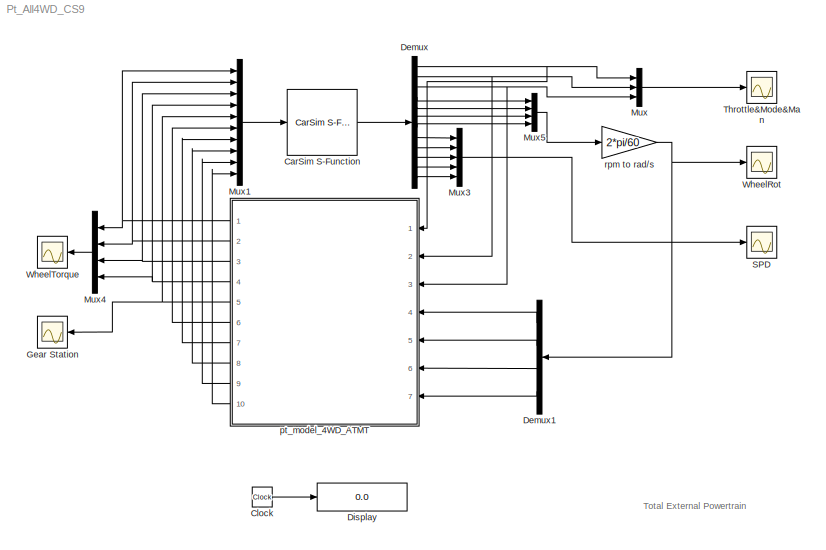
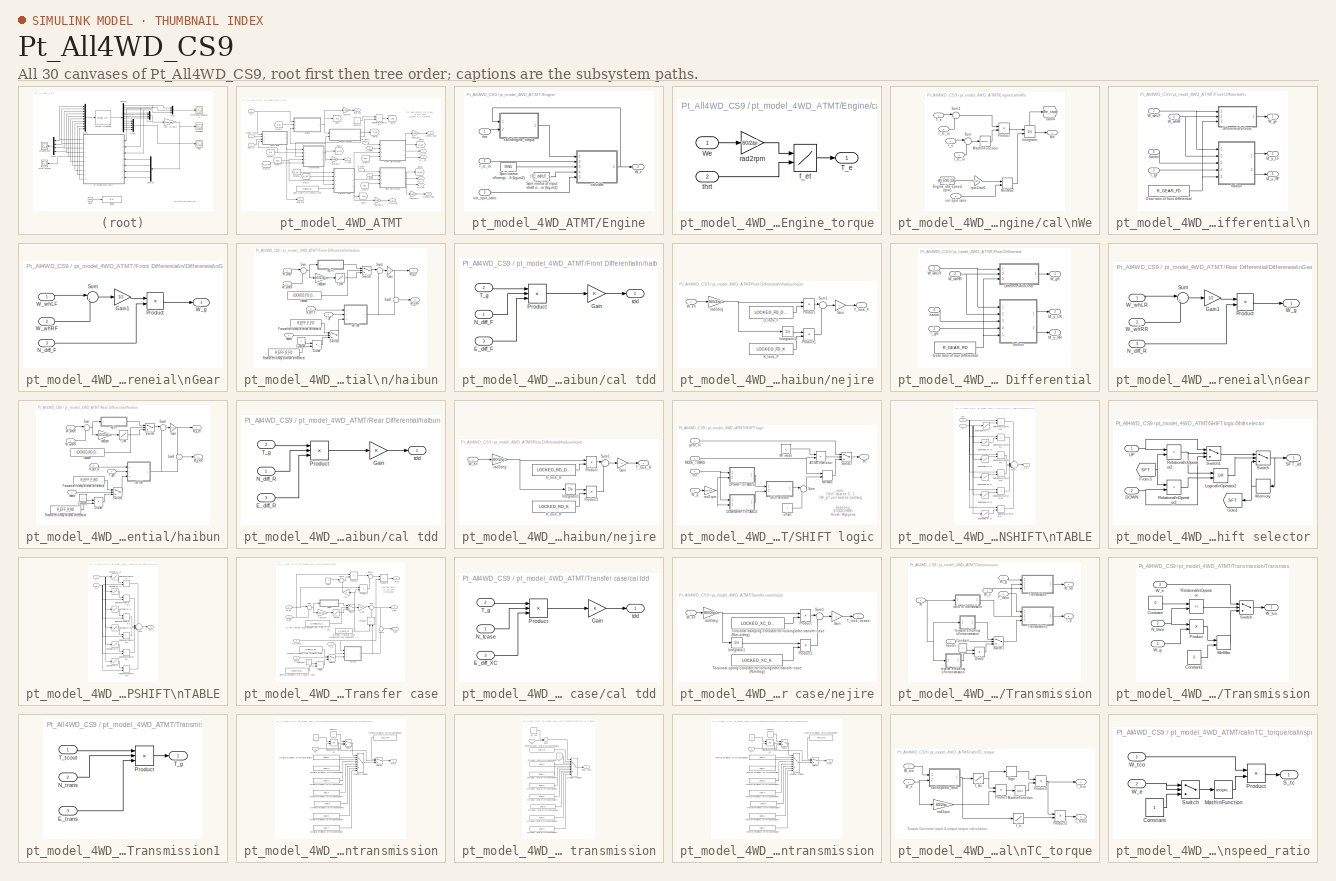
[diagram: thumbnail index - all 30 canvases of the model, root first then tree order]
MODEL Pt_All4WD_CS9
KIND model
CONFIG PreLoadFcn = cd Extensions/Simulink/pt_all4wd\npt_parame_ft4wd_eclass\ncd ../../..
BLOCK [Reference] CarSim S-Function  REF=Solver_SF/CarSim S-Function
  Ports = [1, 1]
  Priority = 1
  SID = 1
  SIMFILE = simfile.sim
  SourceBlock = Solver_SF/CarSim S-Function
  SourceType = Vehicle math model library
BLOCK [Clock] Clock
  Decimation = 10
  SID = 2
BLOCK [Demux] Demux
  Outputs = 12
  Ports = [1, 12]
  SID = 3
BLOCK [Demux] Demux1
  Ports = [1, 4]
  SID = 4
BLOCK [Display] Display
  Decimation = 1
  Lockdown = off
  Ports = [1]
  SID = 5
BLOCK [Scope] Gear Station
  DataFormat = StructureWithTime
  Floating = off
  LimitDataPoints = off
  NumInputPorts = 1
  Ports = [1]
  SID = 6
  YMax = 6
  YMin = 0
BLOCK [Mux] Mux
  DisplayOption = bar
  Inputs = 3
  Ports = [3, 1]
  SID = 14
BLOCK [Mux] Mux1
  DisplayOption = bar
  Inputs = 10
  Ports = [10, 1]
  SID = 15
BLOCK [Mux] Mux3
  DisplayOption = bar
  Inputs = 5
  Ports = [5, 1]
  SID = 16
BLOCK [Mux] Mux4
  DisplayOption = bar
  Ports = [4, 1]
  SID = 17
BLOCK [Mux] Mux5
  DisplayOption = bar
  Ports = [4, 1]
  SID = 18
BLOCK [Scope] SPD
  DataFormat = StructureWithTime
  Floating = off
  LimitDataPoints = off
  NumInputPorts = 1
  Ports = [1]
  SID = 19
  YMax = 200
  YMin = -50
BLOCK [Scope] Throttle&Mode&Man
  DataFormat = StructureWithTime
  Floating = off
  LimitDataPoints = off
  NumInputPorts = 1
  Ports = [1]
  SID = 20
  YMax = 7
  YMin = 0
BLOCK [Scope] WheelRot
  DataFormat = StructureWithTime
  Floating = off
  LimitDataPoints = off
  NumInputPorts = 1
  Ports = [1]
  SID = 21
  TimeRange = 20
  YMax = 50
  YMin = -10
BLOCK [Scope] WheelTorque
  DataFormat = StructureWithTime
  Floating = off
  LimitDataPoints = off
  NumInputPorts = 1
  Ports = [1]
  SID = 22
  YMax = 2750
  YMin = 0
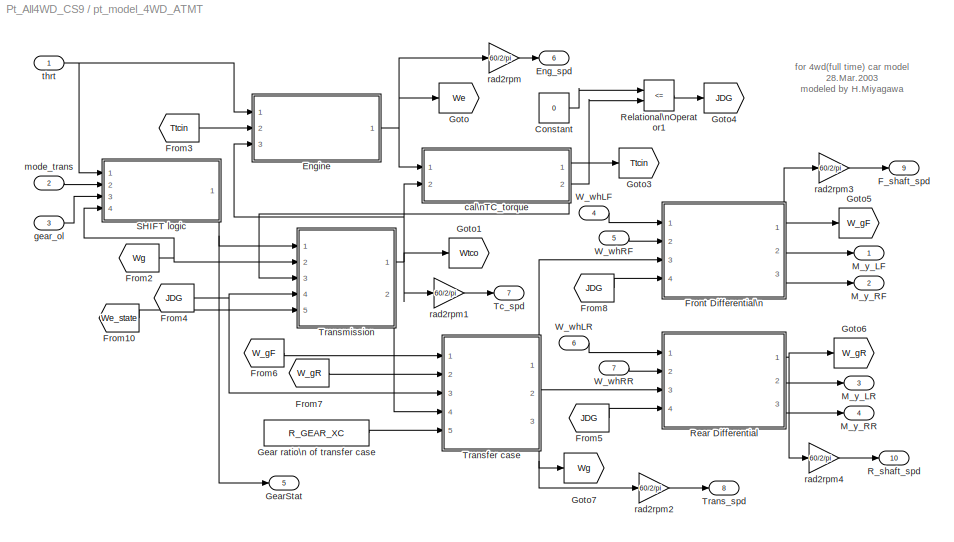
BLOCK [SubSystem] pt_model_4WD_ATMT
  FunctionWithSeparateData = off
  MaskHideContents = off
  MinAlgLoopOccurrences = off
  Opaque = off
  Ports = [7, 10]
  PropExecContextOutsideSubsystem = off
  RTWSystemCode = Auto
  RequestExecContextInheritance = off
  SID = 23
BLOCK [Constant] pt_model_4WD_ATMT/Constant
  SID = 31
  Value = 0
BLOCK [Outport] pt_model_4WD_ATMT/Eng_spd
  IconDisplay = Port number
  Port = 6
  SID = 406
BLOCK [SubSystem] pt_model_4WD_ATMT/Engine
  FunctionWithSeparateData = off
  MaskHideContents = off
  MinAlgLoopOccurrences = off
  Opaque = off
  Ports = [3, 1]
  PropExecContextOutsideSubsystem = off
  RTWSystemCode = Auto
  RequestExecContextInheritance = off
  SID = 32
BLOCK [Constant] pt_model_4WD_ATMT/Engine/Spin inertia of input shaft of\ntorque converter (kg-m2)
  SID = 37
  Value = ITC_INPUT_SHAFT
BLOCK [Constant] pt_model_4WD_ATMT/Engine/Spin inertia of\nengine crankshaft (kg-m2)
  SID = 36
  Value = IENG
BLOCK [Inport] pt_model_4WD_ATMT/Engine/T_tc_in
  IconDisplay = Port number
  Port = 2
  SID = 34
BLOCK [Outport] pt_model_4WD_ATMT/Engine/W_e
  IconDisplay = Port number
  SID = 60
BLOCK [SubSystem] pt_model_4WD_ATMT/Engine/cal\nEngine_torque
  FunctionWithSeparateData = off
  MaskHideContents = off
  MinAlgLoopOccurrences = off
  Opaque = off
  Ports = [2, 1]
  PropExecContextOutsideSubsystem = off
  RTWSystemCode = Auto
  RequestExecContextInheritance = off
  SID = 38
BLOCK [Outport] pt_model_4WD_ATMT/Engine/cal\nEngine_torque/T_e
  IconDisplay = Port number
  SID = 43
BLOCK [Inport] pt_model_4WD_ATMT/Engine/cal\nEngine_torque/We
  IconDisplay = Port number
  SID = 39
BLOCK [Lookup2D] pt_model_4WD_ATMT/Engine/cal\nEngine_torque/f_et
  ColumnIndex = MENGINE_CARPET(1,2:11)
  RowIndex = MENGINE_CARPET(2:19,1)
  SID = 41
  Table = MENGINE_CARPET(2:19,2:11)
BLOCK [Gain] pt_model_4WD_ATMT/Engine/cal\nEngine_torque/rad2rpm
  Gain = 60/2/pi
  SID = 42
BLOCK [Inport] pt_model_4WD_ATMT/Engine/cal\nEngine_torque/thrt
  IconDisplay = Port number
  Port = 2
  SID = 40
BLOCK [SubSystem] pt_model_4WD_ATMT/Engine/cal\nWe
  FunctionWithSeparateData = off
  MaskHideContents = off
  MinAlgLoopOccurrences = off
  Opaque = off
  Ports = [5, 1]
  PropExecContextOutsideSubsystem = off
  RTWSystemCode = Auto
  RequestExecContextInheritance = off
  SID = 44
BLOCK [Constant] pt_model_4WD_ATMT/Engine/cal\nWe/Engine idle speed (rpm)
  SID = 50
  Value = AV_ENG_IDLE
BLOCK [Goto] pt_model_4WD_ATMT/Engine/cal\nWe/Goto4
  GotoTag = We_state
  SID = 51
  TagVisibility = global
BLOCK [Inport] pt_model_4WD_ATMT/Engine/cal\nWe/I_e
  IconDisplay = Port number
  Port = 3
  SID = 47
BLOCK [Inport] pt_model_4WD_ATMT/Engine/cal\nWe/I_tc_in
  IconDisplay = Port number
  Port = 4
  SID = 48
BLOCK [Integrator] pt_model_4WD_ATMT/Engine/cal\nWe/Integrator
  InitialCondition = AV_ENG_IDLE*2*pi/60
  InitialConditionSource = external
  Ports = [2, 1, 0, 0, 1]
  SID = 52
  ShowStatePort = on
BLOCK [Math] pt_model_4WD_ATMT/Engine/cal\nWe/Math\nFunction
  Operator = reciprocal
  Ports = [1, 1]
  SID = 53
BLOCK [MinMax] pt_model_4WD_ATMT/Engine/cal\nWe/MinMax
  Function = max
  Inputs = 2
  Ports = [2, 1]
  SID = 54
BLOCK [Product] pt_model_4WD_ATMT/Engine/cal\nWe/Product
  Ports = [2, 1]
  RndMeth = Floor
  SID = 55
BLOCK [Sum] pt_model_4WD_ATMT/Engine/cal\nWe/Sum
  IconShape = round
  Inputs = |++
  Ports = [2, 1]
  SID = 56
BLOCK [Sum] pt_model_4WD_ATMT/Engine/cal\nWe/Sum1
  IconShape = round
  Inputs = |+-
  Ports = [2, 1]
  SID = 57
BLOCK [Inport] pt_model_4WD_ATMT/Engine/cal\nWe/T_e
  IconDisplay = Port number
  SID = 45
BLOCK [Inport] pt_model_4WD_ATMT/Engine/cal\nWe/T_tc_in
  IconDisplay = Port number
  Port = 2
  SID = 46
BLOCK [Outport] pt_model_4WD_ATMT/Engine/cal\nWe/We
  IconDisplay = Port number
  SID = 59
BLOCK [Inport] pt_model_4WD_ATMT/Engine/cal\nWe/init spin ratio
  IconDisplay = Port number
  Port = 5
  SID = 49
BLOCK [Gain] pt_model_4WD_ATMT/Engine/cal\nWe/rpm2rad1
  Gain = 1/(60/2/pi)
  SID = 58
BLOCK [Inport] pt_model_4WD_ATMT/Engine/init_spin_ratio
  IconDisplay = Port number
  Port = 3
  SID = 35
BLOCK [Inport] pt_model_4WD_ATMT/Engine/thrt
  IconDisplay = Port number
  SID = 33
BLOCK [Outport] pt_model_4WD_ATMT/F_shaft_spd
  IconDisplay = Port number
  Port = 9
  SID = 409
BLOCK [From] pt_model_4WD_ATMT/From10
  CloseFcn = tagdialog Close
  GotoTag = We_state
  SID = 61
  TagVisibility = global
BLOCK [From] pt_model_4WD_ATMT/From2
  CloseFcn = tagdialog Close
  GotoTag = Wg
  SID = 62
BLOCK [From] pt_model_4WD_ATMT/From3
  CloseFcn = tagdialog Close
  GotoTag = Ttcin
  SID = 63
BLOCK [From] pt_model_4WD_ATMT/From4
  CloseFcn = tagdialog Close
  GotoTag = JDG
  SID = 64
BLOCK [From] pt_model_4WD_ATMT/From5
  CloseFcn = tagdialog Close
  GotoTag = JDG
  SID = 65
BLOCK [From] pt_model_4WD_ATMT/From6
  CloseFcn = tagdialog Close
  GotoTag = W_gF
  SID = 66
BLOCK [From] pt_model_4WD_ATMT/From7
  CloseFcn = tagdialog Close
  GotoTag = W_gR
  SID = 67
BLOCK [From] pt_model_4WD_ATMT/From8
  CloseFcn = tagdialog Close
  GotoTag = JDG
  SID = 68
BLOCK [SubSystem] pt_model_4WD_ATMT/Front Differential\n
  FunctionWithSeparateData = off
  MaskHideContents = off
  MinAlgLoopOccurrences = off
  Opaque = off
  Ports = [4, 3]
  PropExecContextOutsideSubsystem = off
  RTWSystemCode = Auto
  RequestExecContextInheritance = off
  SID = 69
BLOCK [SubSystem] pt_model_4WD_ATMT/Front Differential\n/Differeneial\nGear
  FunctionWithSeparateData = off
  MaskHideContents = off
  MinAlgLoopOccurrences = off
  Opaque = off
  Ports = [3, 1]
  PropExecContextOutsideSubsystem = off
  RTWSystemCode = Auto
  RequestExecContextInheritance = off
  SID = 74
BLOCK [Gain] pt_model_4WD_ATMT/Front Differential\n/Differeneial\nGear/Gain1
  Gain = 1/2
  SID = 78
BLOCK [Inport] pt_model_4WD_ATMT/Front Differential\n/Differeneial\nGear/N_diff_F
  IconDisplay = Port number
  Port = 3
  SID = 77
BLOCK [Product] pt_model_4WD_ATMT/Front Differential\n/Differeneial\nGear/Product
  Ports = [2, 1]
  RndMeth = Floor
  SID = 79
BLOCK [Sum] pt_model_4WD_ATMT/Front Differential\n/Differeneial\nGear/Sum
  IconShape = round
  Inputs = |++
  Ports = [2, 1]
  SID = 80
BLOCK [Outport] pt_model_4WD_ATMT/Front Differential\n/Differeneial\nGear/W_g
  IconDisplay = Port number
  SID = 81
BLOCK [Inport] pt_model_4WD_ATMT/Front Differential\n/Differeneial\nGear/W_whLF
  IconDisplay = Port number
  SID = 75
BLOCK [Inport] pt_model_4WD_ATMT/Front Differential\n/Differeneial\nGear/W_whRF
  IconDisplay = Port number
  Port = 2
  SID = 76
BLOCK [Constant] pt_model_4WD_ATMT/Front Differential\n/Gear ratio of front differential
  SID = 82
  Value = R_GEAR_FD
BLOCK [Outport] pt_model_4WD_ATMT/Front Differential\n/M_y_LF
  IconDisplay = Port number
  Port = 2
  SID = 123
BLOCK [Outport] pt_model_4WD_ATMT/Front Differential\n/M_y_RF
  IconDisplay = Port number
  Port = 3
  SID = 124
BLOCK [Inport] pt_model_4WD_ATMT/Front Differential\n/T_gF
  IconDisplay = Port number
  Port = 3
  SID = 72
BLOCK [Outport] pt_model_4WD_ATMT/Front Differential\n/W_gF
  IconDisplay = Port number
  SID = 122
BLOCK [Inport] pt_model_4WD_ATMT/Front Differential\n/W_whLF
  IconDisplay = Port number
  SID = 70
BLOCK [Inport] pt_model_4WD_ATMT/Front Differential\n/W_whRF
  IconDisplay = Port number
  Port = 2
  SID = 71
BLOCK [SubSystem] pt_model_4WD_ATMT/Front Differential\n/haibun
  FunctionWithSeparateData = off
  MaskHideContents = off
  MinAlgLoopOccurrences = off
  Opaque = off
  Ports = [5, 2]
  PropExecContextOutsideSubsystem = off
  RTWSystemCode = Auto
  RequestExecContextInheritance = off
  SID = 83
BLOCK [Constant] pt_model_4WD_ATMT/Front Differential\n/haibun/Constant
  SID = 89
BLOCK [Product] pt_model_4WD_ATMT/Front Differential\n/haibun/Divide
  Inputs = */
  Ports = [2, 1]
  RndMeth = Floor
  SID = 90
  SaturateOnIntegerOverflow = off
BLOCK [Constant] pt_model_4WD_ATMT/Front Differential\n/haibun/Forward efficiency of\nfront differential
  SID = 91
  Value = R_EFF_F_FD
BLOCK [Gain] pt_model_4WD_ATMT/Front Differential\n/haibun/Gain
  Gain = 1/2
  SID = 92
BLOCK [Outport] pt_model_4WD_ATMT/Front Differential\n/haibun/M_y_LF
  IconDisplay = Port number
  SID = 120
BLOCK [Outport] pt_model_4WD_ATMT/Front Differential\n/haibun/M_y_RF
  IconDisplay = Port number
  Port = 2
  SID = 121
BLOCK [Inport] pt_model_4WD_ATMT/Front Differential\n/haibun/N_diff_F
  IconDisplay = Port number
  Port = 5
  SID = 88
BLOCK [Constant] pt_model_4WD_ATMT/Front Differential\n/haibun/Reverse efficiency of\nfront differential
  SID = 93
  Value = R_EFF_R_FD
BLOCK [Sum] pt_model_4WD_ATMT/Front Differential\n/haibun/Sum
  IconShape = round
  Inputs = |+-
  Ports = [2, 1]
  SID = 94
BLOCK [Sum] pt_model_4WD_ATMT/Front Differential\n/haibun/Sum1
  IconShape = round
  Inputs = |++
  Ports = [2, 1]
  SID = 95
BLOCK [Sum] pt_model_4WD_ATMT/Front Differential\n/haibun/Sum2
  IconShape = round
  Inputs = -|+
  Ports = [2, 1]
  SID = 96
BLOCK [Switch] pt_model_4WD_ATMT/Front Differential\n/haibun/Switch
  SID = 97
  Threshold = 0.5
BLOCK [Switch] pt_model_4WD_ATMT/Front Differential\n/haibun/Switch1
  SID = 98
  Threshold = 0.5
BLOCK [Inport] pt_model_4WD_ATMT/Front Differential\n/haibun/T_gF
  IconDisplay = Port number
  Port = 4
  SID = 87
BLOCK [Inport] pt_model_4WD_ATMT/Front Differential\n/haibun/W_whLF
  IconDisplay = Port number
  SID = 84
BLOCK [Inport] pt_model_4WD_ATMT/Front Differential\n/haibun/W_whRF
  IconDisplay = Port number
  Port = 2
  SID = 85
BLOCK [SubSystem] pt_model_4WD_ATMT/Front Differential\n/haibun/cal tdd
  FunctionWithSeparateData = off
  MaskHideContents = off
  MinAlgLoopOccurrences = off
  Opaque = off
  Ports = [3, 1]
  PropExecContextOutsideSubsystem = off
  RTWSystemCode = Auto
  RequestExecContextInheritance = off
  SID = 99
BLOCK [Inport] pt_model_4WD_ATMT/Front Differential\n/haibun/cal tdd/E_diff_F
  IconDisplay = Port number
  Port = 3
  SID = 102
BLOCK [Gain] pt_model_4WD_ATMT/Front Differential\n/haibun/cal tdd/Gain
  SID = 103
BLOCK [Inport] pt_model_4WD_ATMT/Front Differential\n/haibun/cal tdd/N_diff_F
  IconDisplay = Port number
  SID = 100
BLOCK [Product] pt_model_4WD_ATMT/Front Differential\n/haibun/cal tdd/Product
  Inputs = 3
  Ports = [3, 1]
  RndMeth = Floor
  SID = 104
BLOCK [Inport] pt_model_4WD_ATMT/Front Differential\n/haibun/cal tdd/T_g
  IconDisplay = Port number
  Port = 2
  SID = 101
BLOCK [Outport] pt_model_4WD_ATMT/Front Differential\n/haibun/cal tdd/tdd
  IconDisplay = Port number
  SID = 105
BLOCK [Lookup] pt_model_4WD_ATMT/Front Differential\n/haibun/f_lsd
  InputValues = M_DIFF_FD_TABLE(:,1)
  SID = 106
  Table = M_DIFF_FD_TABLE(:,2)
BLOCK [Inport] pt_model_4WD_ATMT/Front Differential\n/haibun/hantei
  IconDisplay = Port number
  Port = 3
  SID = 86
BLOCK [Constant] pt_model_4WD_ATMT/Front Differential\n/haibun/locked?
  SID = 107
  Value = LOCKED_FD_OPT
BLOCK [SubSystem] pt_model_4WD_ATMT/Front Differential\n/haibun/nejire
  FunctionWithSeparateData = off
  MaskHideContents = off
  MinAlgLoopOccurrences = off
  Opaque = off
  Ports = [1, 1]
  PropExecContextOutsideSubsystem = off
  RTWSystemCode = Auto
  RequestExecContextInheritance = off
  SID = 108
BLOCK [Constant] pt_model_4WD_ATMT/Front Differential\n/haibun/nejire/D_lock_F
  SID = 110
  Value = LOCKED_FD_DAMP
BLOCK [Gain] pt_model_4WD_ATMT/Front Differential\n/haibun/nejire/Gain
  Gain = -1
  SID = 111
BLOCK [Integrator] pt_model_4WD_ATMT/Front Differential\n/haibun/nejire/Integrator1
  Ports = [1, 1]
  SID = 112
BLOCK [Constant] pt_model_4WD_ATMT/Front Differential\n/haibun/nejire/K_lock_F
  SID = 113
  Value = LOCKED_FD_K
BLOCK [Product] pt_model_4WD_ATMT/Front Differential\n/haibun/nejire/Product
  Ports = [2, 1]
  RndMeth = Floor
  SID = 114
BLOCK [Product] pt_model_4WD_ATMT/Front Differential\n/haibun/nejire/Product1
  Ports = [2, 1]
  RndMeth = Floor
  SID = 115
BLOCK [Sum] pt_model_4WD_ATMT/Front Differential\n/haibun/nejire/Sum1
  IconShape = round
  Inputs = |++
  Ports = [2, 1]
  SID = 116
BLOCK [Outport] pt_model_4WD_ATMT/Front Differential\n/haibun/nejire/T_lock_F
  IconDisplay = Port number
  SID = 118
BLOCK [Inport] pt_model_4WD_ATMT/Front Differential\n/haibun/nejire/W_err
  IconDisplay = Port number
  SID = 109
BLOCK [Gain] pt_model_4WD_ATMT/Front Differential\n/haibun/nejire/rad2deg
  Gain = 360/2/pi
  SID = 117
BLOCK [Gain] pt_model_4WD_ATMT/Front Differential\n/haibun/rad2rpm
  Gain = 60/2/pi
  SID = 119
BLOCK [Inport] pt_model_4WD_ATMT/Front Differential\n/hantei
  IconDisplay = Port number
  Port = 4
  SID = 73
BLOCK [Constant] pt_model_4WD_ATMT/Gear ratio\n of transfer case
  SID = 125
  Value = R_GEAR_XC
BLOCK [Outport] pt_model_4WD_ATMT/GearStat
  IconDisplay = Port number
  Port = 5
  SID = 405
BLOCK [Goto] pt_model_4WD_ATMT/Goto
  GotoTag = We
  SID = 126
  TagVisibility = local
BLOCK [Goto] pt_model_4WD_ATMT/Goto1
  GotoTag = Wtco
  SID = 127
  TagVisibility = local
BLOCK [Goto] pt_model_4WD_ATMT/Goto3
  GotoTag = Ttcin
  SID = 128
  TagVisibility = local
BLOCK [Goto] pt_model_4WD_ATMT/Goto4
  GotoTag = JDG
  SID = 129
  TagVisibility = local
BLOCK [Goto] pt_model_4WD_ATMT/Goto5
  GotoTag = W_gF
  SID = 130
  TagVisibility = local
BLOCK [Goto] pt_model_4WD_ATMT/Goto6
  GotoTag = W_gR
  SID = 131
  TagVisibility = local
BLOCK [Goto] pt_model_4WD_ATMT/Goto7
  GotoTag = Wg
  SID = 132
  TagVisibility = local
BLOCK [Outport] pt_model_4WD_ATMT/M_y_LF
  IconDisplay = Port number
  SID = 401
BLOCK [Outport] pt_model_4WD_ATMT/M_y_LR
  IconDisplay = Port number
  Port = 3
  SID = 403
BLOCK [Outport] pt_model_4WD_ATMT/M_y_RF
  IconDisplay = Port number
  Port = 2
  SID = 402
BLOCK [Outport] pt_model_4WD_ATMT/M_y_RR
  IconDisplay = Port number
  Port = 4
  SID = 404
BLOCK [Outport] pt_model_4WD_ATMT/R_shaft_spd
  IconDisplay = Port number
  Port = 10
  SID = 410
BLOCK [SubSystem] pt_model_4WD_ATMT/Rear Differential
  FunctionWithSeparateData = off
  MaskHideContents = off
  MinAlgLoopOccurrences = off
  Opaque = off
  Ports = [4, 3]
  PropExecContextOutsideSubsystem = off
  RTWSystemCode = Auto
  RequestExecContextInheritance = off
  SID = 133
BLOCK [SubSystem] pt_model_4WD_ATMT/Rear Differential/Differeneial\nGear
  FunctionWithSeparateData = off
  MaskHideContents = off
  MinAlgLoopOccurrences = off
  Opaque = off
  Ports = [3, 1]
  PropExecContextOutsideSubsystem = off
  RTWSystemCode = Auto
  RequestExecContextInheritance = off
  SID = 138
BLOCK [Gain] pt_model_4WD_ATMT/Rear Differential/Differeneial\nGear/Gain1
  Gain = 1/2
  SID = 142
BLOCK [Inport] pt_model_4WD_ATMT/Rear Differential/Differeneial\nGear/N_diff_R
  IconDisplay = Port number
  Port = 3
  SID = 141
BLOCK [Product] pt_model_4WD_ATMT/Rear Differential/Differeneial\nGear/Product
  Ports = [2, 1]
  RndMeth = Floor
  SID = 143
BLOCK [Sum] pt_model_4WD_ATMT/Rear Differential/Differeneial\nGear/Sum
  IconShape = round
  Inputs = |++
  Ports = [2, 1]
  SID = 144
BLOCK [Outport] pt_model_4WD_ATMT/Rear Differential/Differeneial\nGear/W_g
  IconDisplay = Port number
  SID = 145
BLOCK [Inport] pt_model_4WD_ATMT/Rear Differential/Differeneial\nGear/W_whLR
  IconDisplay = Port number
  SID = 139
BLOCK [Inport] pt_model_4WD_ATMT/Rear Differential/Differeneial\nGear/W_whRR
  IconDisplay = Port number
  Port = 2
  SID = 140
BLOCK [Constant] pt_model_4WD_ATMT/Rear Differential/Gear ratio of rear differential
  SID = 146
  Value = R_GEAR_RD
BLOCK [Outport] pt_model_4WD_ATMT/Rear Differential/M_y_LR
  IconDisplay = Port number
  Port = 2
  SID = 187
BLOCK [Outport] pt_model_4WD_ATMT/Rear Differential/M_y_RR
  IconDisplay = Port number
  Port = 3
  SID = 188
BLOCK [Inport] pt_model_4WD_ATMT/Rear Differential/T_gR
  IconDisplay = Port number
  Port = 3
  SID = 136
BLOCK [Outport] pt_model_4WD_ATMT/Rear Differential/W_gR
  IconDisplay = Port number
  SID = 186
BLOCK [Inport] pt_model_4WD_ATMT/Rear Differential/W_whLR
  IconDisplay = Port number
  SID = 134
BLOCK [Inport] pt_model_4WD_ATMT/Rear Differential/W_whRR
  IconDisplay = Port number
  Port = 2
  SID = 135
BLOCK [SubSystem] pt_model_4WD_ATMT/Rear Differential/haibun
  FunctionWithSeparateData = off
  MaskHideContents = off
  MinAlgLoopOccurrences = off
  Opaque = off
  Ports = [5, 2]
  PropExecContextOutsideSubsystem = off
  RTWSystemCode = Auto
  RequestExecContextInheritance = off
  SID = 147
BLOCK [Constant] pt_model_4WD_ATMT/Rear Differential/haibun/Constant
  SID = 153
BLOCK [Product] pt_model_4WD_ATMT/Rear Differential/haibun/Divide
  Inputs = */
  Ports = [2, 1]
  RndMeth = Floor
  SID = 154
  SaturateOnIntegerOverflow = off
BLOCK [Constant] pt_model_4WD_ATMT/Rear Differential/haibun/Forward efficiency of\nrear differential
  SID = 155
  Value = R_EFF_F_RD
BLOCK [Gain] pt_model_4WD_ATMT/Rear Differential/haibun/Gain
  Gain = 1/2
  SID = 156
BLOCK [Outport] pt_model_4WD_ATMT/Rear Differential/haibun/M_y_LR
  IconDisplay = Port number
  SID = 184
BLOCK [Outport] pt_model_4WD_ATMT/Rear Differential/haibun/M_y_RR
  IconDisplay = Port number
  Port = 2
  SID = 185
BLOCK [Inport] pt_model_4WD_ATMT/Rear Differential/haibun/N_diff_R
  IconDisplay = Port number
  Port = 5
  SID = 152
BLOCK [Constant] pt_model_4WD_ATMT/Rear Differential/haibun/Reverse efficiency of\nrear differential
  SID = 157
  Value = R_EFF_R_RD
BLOCK [Sum] pt_model_4WD_ATMT/Rear Differential/haibun/Sum
  IconShape = round
  Inputs = |+-
  Ports = [2, 1]
  SID = 158
BLOCK [Sum] pt_model_4WD_ATMT/Rear Differential/haibun/Sum1
  IconShape = round
  Inputs = |++
  Ports = [2, 1]
  SID = 159
BLOCK [Sum] pt_model_4WD_ATMT/Rear Differential/haibun/Sum2
  IconShape = round
  Inputs = -|+
  Ports = [2, 1]
  SID = 160
BLOCK [Switch] pt_model_4WD_ATMT/Rear Differential/haibun/Switch
  SID = 161
  Threshold = 0.5
BLOCK [Switch] pt_model_4WD_ATMT/Rear Differential/haibun/Switch1
  SID = 162
  Threshold = 0.5
BLOCK [Inport] pt_model_4WD_ATMT/Rear Differential/haibun/T_gR
  IconDisplay = Port number
  Port = 4
  SID = 151
BLOCK [Inport] pt_model_4WD_ATMT/Rear Differential/haibun/W_whLR
  IconDisplay = Port number
  SID = 148
BLOCK [Inport] pt_model_4WD_ATMT/Rear Differential/haibun/W_whRR
  IconDisplay = Port number
  Port = 2
  SID = 149
BLOCK [SubSystem] pt_model_4WD_ATMT/Rear Differential/haibun/cal tdd
  FunctionWithSeparateData = off
  MaskHideContents = off
  MinAlgLoopOccurrences = off
  Opaque = off
  Ports = [3, 1]
  PropExecContextOutsideSubsystem = off
  RTWSystemCode = Auto
  RequestExecContextInheritance = off
  SID = 163
BLOCK [Inport] pt_model_4WD_ATMT/Rear Differential/haibun/cal tdd/E_diff_R
  IconDisplay = Port number
  Port = 3
  SID = 166
BLOCK [Gain] pt_model_4WD_ATMT/Rear Differential/haibun/cal tdd/Gain
  SID = 167
BLOCK [Inport] pt_model_4WD_ATMT/Rear Differential/haibun/cal tdd/N_diff_R
  IconDisplay = Port number
  SID = 164
BLOCK [Product] pt_model_4WD_ATMT/Rear Differential/haibun/cal tdd/Product
  Inputs = 3
  Ports = [3, 1]
  RndMeth = Floor
  SID = 168
BLOCK [Inport] pt_model_4WD_ATMT/Rear Differential/haibun/cal tdd/T_g
  IconDisplay = Port number
  Port = 2
  SID = 165
BLOCK [Outport] pt_model_4WD_ATMT/Rear Differential/haibun/cal tdd/tdd
  IconDisplay = Port number
  SID = 169
BLOCK [Lookup] pt_model_4WD_ATMT/Rear Differential/haibun/f_lsd
  InputValues = M_DIFF_RD_TABLE(:,1)
  SID = 170
  Table = M_DIFF_RD_TABLE(:,2)
BLOCK [Inport] pt_model_4WD_ATMT/Rear Differential/haibun/hantei
  IconDisplay = Port number
  Port = 3
  SID = 150
BLOCK [Constant] pt_model_4WD_ATMT/Rear Differential/haibun/locked?
  SID = 171
  Value = LOCKED_RD_OPT
BLOCK [SubSystem] pt_model_4WD_ATMT/Rear Differential/haibun/nejire
  FunctionWithSeparateData = off
  MaskHideContents = off
  MinAlgLoopOccurrences = off
  Opaque = off
  Ports = [1, 1]
  PropExecContextOutsideSubsystem = off
  RTWSystemCode = Auto
  RequestExecContextInheritance = off
  SID = 172
BLOCK [Constant] pt_model_4WD_ATMT/Rear Differential/haibun/nejire/D_lock_R
  SID = 174
  Value = LOCKED_RD_DAMP
BLOCK [Gain] pt_model_4WD_ATMT/Rear Differential/haibun/nejire/Gain
  Gain = -1
  SID = 175
BLOCK [Integrator] pt_model_4WD_ATMT/Rear Differential/haibun/nejire/Integrator1
  Ports = [1, 1]
  SID = 176
BLOCK [Constant] pt_model_4WD_ATMT/Rear Differential/haibun/nejire/K_lock_R
  SID = 177
  Value = LOCKED_RD_K
BLOCK [Product] pt_model_4WD_ATMT/Rear Differential/haibun/nejire/Product
  Ports = [2, 1]
  RndMeth = Floor
  SID = 178
BLOCK [Product] pt_model_4WD_ATMT/Rear Differential/haibun/nejire/Product1
  Ports = [2, 1]
  RndMeth = Floor
  SID = 179
BLOCK [Sum] pt_model_4WD_ATMT/Rear Differential/haibun/nejire/Sum1
  IconShape = round
  Inputs = |++
  Ports = [2, 1]
  SID = 180
BLOCK [Outport] pt_model_4WD_ATMT/Rear Differential/haibun/nejire/T_lock_R
  IconDisplay = Port number
  SID = 182
BLOCK [Inport] pt_model_4WD_ATMT/Rear Differential/haibun/nejire/W_err
  IconDisplay = Port number
  SID = 173
BLOCK [Gain] pt_model_4WD_ATMT/Rear Differential/haibun/nejire/rad2deg
  Gain = 360/2/pi
  SID = 181
BLOCK [Gain] pt_model_4WD_ATMT/Rear Differential/haibun/rad2rpm
  Gain = 60/2/pi
  SID = 183
BLOCK [Inport] pt_model_4WD_ATMT/Rear Differential/hantei
  IconDisplay = Port number
  Port = 4
  SID = 137
BLOCK [RelationalOperator] pt_model_4WD_ATMT/Relational\nOperator1
  Operator = <=
  Ports = [2, 1]
  SID = 189
BLOCK [SubSystem] pt_model_4WD_ATMT/SHIFT logic
  FunctionWithSeparateData = off
  MaskHideContents = off
  MinAlgLoopOccurrences = off
  Opaque = off
  Ports = [4, 1]
  PropExecContextOutsideSubsystem = off
  RTWSystemCode = Auto
  RequestExecContextInheritance = off
  SID = 190
BLOCK [RelationalOperator] pt_model_4WD_ATMT/SHIFT logic/AT//MT\nselector
  Operator = ==
  Ports = [2, 1]
  SID = 195
BLOCK [SubSystem] pt_model_4WD_ATMT/SHIFT logic/DOWNSHIFT\nTABLE
  FunctionWithSeparateData = off
  MaskHideContents = off
  MinAlgLoopOccurrences = off
  Opaque = off
  Ports = [2, 1]
  PropExecContextOutsideSubsystem = off
  RTWSystemCode = Auto
  RequestExecContextInheritance = off
  SID = 196
BLOCK [Lookup] pt_model_4WD_ATMT/SHIFT logic/DOWNSHIFT\nTABLE/DownTable\n2->1
  InputValues = DOWNSHIFT_TRANS_TABLE_1(:,1)
  SID = 199
  Table = DOWNSHIFT_TRANS_TABLE_1(:,2)
BLOCK [Lookup] pt_model_4WD_ATMT/SHIFT logic/DOWNSHIFT\nTABLE/DownTable\n3->2
  InputValues = DOWNSHIFT_TRANS_TABLE_2(:,1)
  SID = 200
  Table = DOWNSHIFT_TRANS_TABLE_2(:,2)
BLOCK [Lookup] pt_model_4WD_ATMT/SHIFT logic/DOWNSHIFT\nTABLE/DownTable\n4->3
  InputValues = DOWNSHIFT_TRANS_TABLE_3(:,1)
  SID = 201
  Table = DOWNSHIFT_TRANS_TABLE_3(:,2)
BLOCK [Lookup] pt_model_4WD_ATMT/SHIFT logic/DOWNSHIFT\nTABLE/DownTable\n5->4
  InputValues = DOWNSHIFT_TRANS_TABLE_4(:,1)
  SID = 202
  Table = DOWNSHIFT_TRANS_TABLE_4(:,2)
BLOCK [Lookup] pt_model_4WD_ATMT/SHIFT logic/DOWNSHIFT\nTABLE/DownTable\n6->5
  InputValues = DOWNSHIFT_TRANS_TABLE_5(:,1)
  SID = 203
  Table = DOWNSHIFT_TRANS_TABLE_5(:,2)
BLOCK [Lookup] pt_model_4WD_ATMT/SHIFT logic/DOWNSHIFT\nTABLE/DownTable\n7->6
  InputValues = DOWNSHIFT_TRANS_TABLE_6(:,1)
  SID = 204
  Table = DOWNSHIFT_TRANS_TABLE_6(:,2)
BLOCK [Inport] pt_model_4WD_ATMT/SHIFT logic/DOWNSHIFT\nTABLE/NO
  IconDisplay = Port number
  Port = 2
  SID = 198
BLOCK [Outport] pt_model_4WD_ATMT/SHIFT logic/DOWNSHIFT\nTABLE/Out1
  IconDisplay = Port number
  SID = 212
BLOCK [RelationalOperator] pt_model_4WD_ATMT/SHIFT logic/DOWNSHIFT\nTABLE/Relational\nOperator10
  Operator = >
  Ports = [2, 1]
  SID = 205
BLOCK [RelationalOperator] pt_model_4WD_ATMT/SHIFT logic/DOWNSHIFT\nTABLE/Relational\nOperator11
  Operator = >
  Ports = [2, 1]
  SID = 206
BLOCK [RelationalOperator] pt_model_4WD_ATMT/SHIFT logic/DOWNSHIFT\nTABLE/Relational\nOperator6
  Operator = >
  Ports = [2, 1]
  SID = 207
BLOCK [RelationalOperator] pt_model_4WD_ATMT/SHIFT logic/DOWNSHIFT\nTABLE/Relational\nOperator7
  Operator = >
  Ports = [2, 1]
  SID = 208
BLOCK [RelationalOperator] pt_model_4WD_ATMT/SHIFT logic/DOWNSHIFT\nTABLE/Relational\nOperator8
  Operator = >
  Ports = [2, 1]
  SID = 209
BLOCK [RelationalOperator] pt_model_4WD_ATMT/SHIFT logic/DOWNSHIFT\nTABLE/Relational\nOperator9
  Operator = >
  Ports = [2, 1]
  SID = 210
BLOCK [Sum] pt_model_4WD_ATMT/SHIFT logic/DOWNSHIFT\nTABLE/Sum1
  IconShape = round
  Inputs = 6
  Ports = [6, 1]
  SID = 211
BLOCK [Inport] pt_model_4WD_ATMT/SHIFT logic/DOWNSHIFT\nTABLE/TA
  IconDisplay = Port number
  SID = 197
BLOCK [Inport] pt_model_4WD_ATMT/SHIFT logic/MODE_TRANS
  IconDisplay = Port number
  Port = 2
  SID = 192
BLOCK [Constant] pt_model_4WD_ATMT/SHIFT logic/MT mode
  SID = 213
BLOCK [MinMax] pt_model_4WD_ATMT/SHIFT logic/MinMax
  Function = min
  Inputs = 2
  Ports = [2, 1]
  SID = 214
BLOCK [SubSystem] pt_model_4WD_ATMT/SHIFT logic/Shift selector
  FunctionWithSeparateData = off
  MaskHideContents = off
  MinAlgLoopOccurrences = off
  Opaque = off
  Ports = [2, 1]
  PropExecContextOutsideSubsystem = off
  RTWSystemCode = Auto
  RequestExecContextInheritance = off
  SID = 215
BLOCK [Inport] pt_model_4WD_ATMT/SHIFT logic/Shift selector/DOWN
  IconDisplay = Port number
  Port = 2
  SID = 217
BLOCK [From] pt_model_4WD_ATMT/SHIFT logic/Shift selector/From3
  CloseFcn = tagdialog Close
  GotoTag = SFT
  SID = 218
BLOCK [Goto] pt_model_4WD_ATMT/SHIFT logic/Shift selector/Goto1
  GotoTag = SFT
  SID = 219
  TagVisibility = local
BLOCK [Logic] pt_model_4WD_ATMT/SHIFT logic/Shift selector/Logical\nOperator2
  Operator = OR
  Ports = [2, 1]
  SID = 220
BLOCK [Memory] pt_model_4WD_ATMT/SHIFT logic/Shift selector/Memory
  SID = 221
BLOCK [RelationalOperator] pt_model_4WD_ATMT/SHIFT logic/Shift selector/Relational\nOperator2
  Operator = >
  Ports = [2, 1]
  SID = 222
BLOCK [RelationalOperator] pt_model_4WD_ATMT/SHIFT logic/Shift selector/Relational\nOperator3
  Operator = >
  Ports = [2, 1]
  SID = 223
BLOCK [Outport] pt_model_4WD_ATMT/SHIFT logic/Shift selector/SFT_ref
  IconDisplay = Port number
  SID = 226
BLOCK [Switch] pt_model_4WD_ATMT/SHIFT logic/Shift selector/Switch
  SID = 224
  Threshold = 0.5
BLOCK [Switch] pt_model_4WD_ATMT/SHIFT logic/Shift selector/Switch1
  SID = 225
  Threshold = 0.5
BLOCK [Inport] pt_model_4WD_ATMT/SHIFT logic/Shift selector/UP
  IconDisplay = Port number
  SID = 216
BLOCK [Sum] pt_model_4WD_ATMT/SHIFT logic/Sum
  IconShape = round
  Inputs = |++
  Ports = [2, 1]
  SID = 227
BLOCK [Switch] pt_model_4WD_ATMT/SHIFT logic/Switch2
  SID = 228
  Threshold = 0.5
BLOCK [SubSystem] pt_model_4WD_ATMT/SHIFT logic/UPSHIFT\nTABLE
  FunctionWithSeparateData = off
  MaskHideContents = off
  MinAlgLoopOccurrences = off
  Opaque = off
  Ports = [2, 1]
  PropExecContextOutsideSubsystem = off
  RTWSystemCode = Auto
  RequestExecContextInheritance = off
  SID = 229
BLOCK [Inport] pt_model_4WD_ATMT/SHIFT logic/UPSHIFT\nTABLE/NO
  IconDisplay = Port number
  Port = 2
  SID = 231
BLOCK [Outport] pt_model_4WD_ATMT/SHIFT logic/UPSHIFT\nTABLE/Out1
  IconDisplay = Port number
  SID = 245
BLOCK [RelationalOperator] pt_model_4WD_ATMT/SHIFT logic/UPSHIFT\nTABLE/Relational\nOperator
  Operator = <
  Ports = [2, 1]
  SID = 232
BLOCK [RelationalOperator] pt_model_4WD_ATMT/SHIFT logic/UPSHIFT\nTABLE/Relational\nOperator1
  Operator = <
  Ports = [2, 1]
  SID = 233
BLOCK [RelationalOperator] pt_model_4WD_ATMT/SHIFT logic/UPSHIFT\nTABLE/Relational\nOperator2
  Operator = <
  Ports = [2, 1]
  SID = 234
BLOCK [RelationalOperator] pt_model_4WD_ATMT/SHIFT logic/UPSHIFT\nTABLE/Relational\nOperator3
  Operator = <
  Ports = [2, 1]
  SID = 235
BLOCK [RelationalOperator] pt_model_4WD_ATMT/SHIFT logic/UPSHIFT\nTABLE/Relational\nOperator4
  Operator = <
  Ports = [2, 1]
  SID = 236
BLOCK [RelationalOperator] pt_model_4WD_ATMT/SHIFT logic/UPSHIFT\nTABLE/Relational\nOperator5
  Operator = <
  Ports = [2, 1]
  SID = 237
BLOCK [Sum] pt_model_4WD_ATMT/SHIFT logic/UPSHIFT\nTABLE/Sum
  IconShape = round
  Inputs = 6
  Ports = [6, 1]
  SID = 238
BLOCK [Inport] pt_model_4WD_ATMT/SHIFT logic/UPSHIFT\nTABLE/TA
  IconDisplay = Port number
  SID = 230
BLOCK [Lookup] pt_model_4WD_ATMT/SHIFT logic/UPSHIFT\nTABLE/UpTable\n1->2
  InputValues = UPSHIFT_TRANS_TABLE_1(:,1)
  SID = 239
  Table = UPSHIFT_TRANS_TABLE_1(:,2)
BLOCK [Lookup] pt_model_4WD_ATMT/SHIFT logic/UPSHIFT\nTABLE/UpTable\n2->3
  InputValues = UPSHIFT_TRANS_TABLE_2(:,1)
  SID = 240
  Table = UPSHIFT_TRANS_TABLE_2(:,2)
BLOCK [Lookup] pt_model_4WD_ATMT/SHIFT logic/UPSHIFT\nTABLE/UpTable\n3->4
  InputValues = UPSHIFT_TRANS_TABLE_3(:,1)
  SID = 241
  Table = UPSHIFT_TRANS_TABLE_3(:,2)
BLOCK [Lookup] pt_model_4WD_ATMT/SHIFT logic/UPSHIFT\nTABLE/UpTable\n4->5
  InputValues = UPSHIFT_TRANS_TABLE_4(:,1)
  SID = 242
  Table = UPSHIFT_TRANS_TABLE_4(:,2)
BLOCK [Lookup] pt_model_4WD_ATMT/SHIFT logic/UPSHIFT\nTABLE/UpTable\n5->6
  InputValues = UPSHIFT_TRANS_TABLE_5(:,1)
  SID = 243
  Table = UPSHIFT_TRANS_TABLE_5(:,2)
BLOCK [Lookup] pt_model_4WD_ATMT/SHIFT logic/UPSHIFT\nTABLE/UpTable\n6->7
  InputValues = UPSHIFT_TRANS_TABLE_6(:,1)
  SID = 244
  Table = UPSHIFT_TRANS_TABLE_6(:,2)
BLOCK [Inport] pt_model_4WD_ATMT/SHIFT logic/W_g
  IconDisplay = Port number
  Port = 4
  SID = 194
BLOCK [Inport] pt_model_4WD_ATMT/SHIFT logic/gear_ol
  IconDisplay = Port number
  Port = 3
  SID = 193
BLOCK [Constant] pt_model_4WD_ATMT/SHIFT logic/offset
  SID = 246
BLOCK [Gain] pt_model_4WD_ATMT/SHIFT logic/rad2rpm
  Gain = 60/2/pi
  SID = 247
BLOCK [Outport] pt_model_4WD_ATMT/SHIFT logic/sft
  IconDisplay = Port number
  SID = 248
BLOCK [Inport] pt_model_4WD_ATMT/SHIFT logic/thrt
  IconDisplay = Port number
  SID = 191
BLOCK [Outport] pt_model_4WD_ATMT/Tc_spd
  IconDisplay = Port number
  Port = 7
  SID = 407
BLOCK [Outport] pt_model_4WD_ATMT/Trans_spd
  IconDisplay = Port number
  Port = 8
  SID = 408
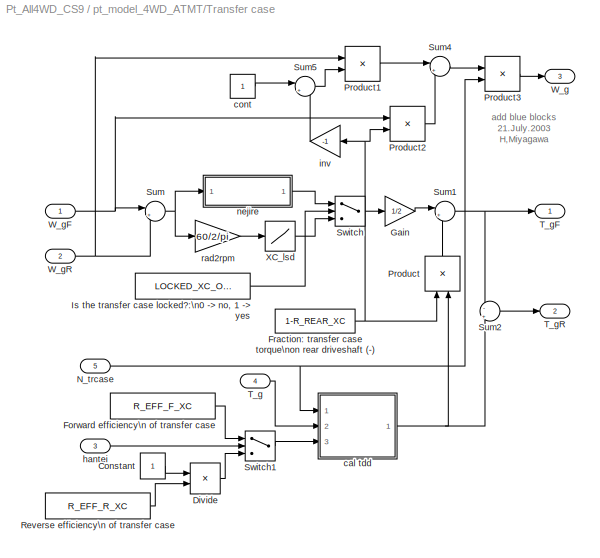
BLOCK [SubSystem] pt_model_4WD_ATMT/Transfer case
  FunctionWithSeparateData = off
  MaskHideContents = off
  MinAlgLoopOccurrences = off
  Opaque = off
  Ports = [5, 3]
  PropExecContextOutsideSubsystem = off
  RTWSystemCode = Auto
  RequestExecContextInheritance = off
  SID = 249
BLOCK [Constant] pt_model_4WD_ATMT/Transfer case/Constant
  SID = 255
BLOCK [Product] pt_model_4WD_ATMT/Transfer case/Divide
  Inputs = */
  Ports = [2, 1]
  RndMeth = Floor
  SID = 256
  SaturateOnIntegerOverflow = off
BLOCK [Constant] pt_model_4WD_ATMT/Transfer case/Forward efficiency\n of  transfer case
  SID = 257
  Value = R_EFF_F_XC
BLOCK [Constant] pt_model_4WD_ATMT/Transfer case/Fraction: transfer case torque\non rear driveshaft (-)
  SID = 258
  Value = 1-R_REAR_XC
BLOCK [Gain] pt_model_4WD_ATMT/Transfer case/Gain
  Gain = 1/2
  SID = 259
BLOCK [Constant] pt_model_4WD_ATMT/Transfer case/Is the transfer case locked?:\n0 -> no, 1 -> yes
  SID = 260
  Value = LOCKED_XC_OPT
BLOCK [Inport] pt_model_4WD_ATMT/Transfer case/N_trcase
  IconDisplay = Port number
  Port = 5
  SID = 254
BLOCK [Product] pt_model_4WD_ATMT/Transfer case/Product
  Ports = [2, 1]
  RndMeth = Floor
  SID = 261
BLOCK [Product] pt_model_4WD_ATMT/Transfer case/Product1
  Ports = [2, 1]
  RndMeth = Floor
  SID = 262
BLOCK [Product] pt_model_4WD_ATMT/Transfer case/Product2
  Ports = [2, 1]
  RndMeth = Floor
  SID = 263
BLOCK [Product] pt_model_4WD_ATMT/Transfer case/Product3
  Ports = [2, 1]
  RndMeth = Floor
  SID = 264
BLOCK [Constant] pt_model_4WD_ATMT/Transfer case/Reverse efficiency\n of transfer case
  SID = 265
  Value = R_EFF_R_XC
BLOCK [Sum] pt_model_4WD_ATMT/Transfer case/Sum
  IconShape = round
  Inputs = |+-
  Ports = [2, 1]
  SID = 266
BLOCK [Sum] pt_model_4WD_ATMT/Transfer case/Sum1
  IconShape = round
  Inputs = |++
  Ports = [2, 1]
  SID = 267
BLOCK [Sum] pt_model_4WD_ATMT/Transfer case/Sum2
  IconShape = round
  Inputs = -|+
  Ports = [2, 1]
  SID = 268
BLOCK [Sum] pt_model_4WD_ATMT/Transfer case/Sum4
  IconShape = round
  Inputs = |++
  Ports = [2, 1]
  SID = 269
BLOCK [Sum] pt_model_4WD_ATMT/Transfer case/Sum5
  IconShape = round
  Inputs = |++
  Ports = [2, 1]
  SID = 270
BLOCK [Switch] pt_model_4WD_ATMT/Transfer case/Switch
  SID = 271
  Threshold = 0.5
BLOCK [Switch] pt_model_4WD_ATMT/Transfer case/Switch1
  SID = 272
  Threshold = 0.5
BLOCK [Inport] pt_model_4WD_ATMT/Transfer case/T_g
  IconDisplay = Port number
  Port = 4
  SID = 253
BLOCK [Outport] pt_model_4WD_ATMT/Transfer case/T_gF
  IconDisplay = Port number
  SID = 295
BLOCK [Outport] pt_model_4WD_ATMT/Transfer case/T_gR
  IconDisplay = Port number
  Port = 2
  SID = 296
BLOCK [Outport] pt_model_4WD_ATMT/Transfer case/W_g
  IconDisplay = Port number
  Port = 3
  SID = 297
BLOCK [Inport] pt_model_4WD_ATMT/Transfer case/W_gF
  IconDisplay = Port number
  SID = 250
BLOCK [Inport] pt_model_4WD_ATMT/Transfer case/W_gR
  IconDisplay = Port number
  Port = 2
  SID = 251
BLOCK [Lookup] pt_model_4WD_ATMT/Transfer case/XC_lsd
  InputValues = M_DIFF_XC_TABLE(:,1)
  SID = 273
  Table = M_DIFF_XC_TABLE(:,2)
BLOCK [SubSystem] pt_model_4WD_ATMT/Transfer case/cal tdd
  FunctionWithSeparateData = off
  MaskHideContents = off
  MinAlgLoopOccurrences = off
  Opaque = off
  Ports = [3, 1]
  PropExecContextOutsideSubsystem = off
  RTWSystemCode = Auto
  RequestExecContextInheritance = off
  SID = 274
BLOCK [Inport] pt_model_4WD_ATMT/Transfer case/cal tdd/E_diff_XC
  IconDisplay = Port number
  Port = 3
  SID = 277
BLOCK [Gain] pt_model_4WD_ATMT/Transfer case/cal tdd/Gain
  SID = 278
BLOCK [Inport] pt_model_4WD_ATMT/Transfer case/cal tdd/N_tcase
  IconDisplay = Port number
  SID = 275
BLOCK [Product] pt_model_4WD_ATMT/Transfer case/cal tdd/Product
  Inputs = 3
  Ports = [3, 1]
  RndMeth = Floor
  SID = 279
BLOCK [Inport] pt_model_4WD_ATMT/Transfer case/cal tdd/T_g
  IconDisplay = Port number
  Port = 2
  SID = 276
BLOCK [Outport] pt_model_4WD_ATMT/Transfer case/cal tdd/tdd
  IconDisplay = Port number
  SID = 280
BLOCK [Constant] pt_model_4WD_ATMT/Transfer case/cont
  SID = 281
BLOCK [Inport] pt_model_4WD_ATMT/Transfer case/hantei
  IconDisplay = Port number
  Port = 3
  SID = 252
BLOCK [Gain] pt_model_4WD_ATMT/Transfer case/inv
  Gain = -1
  SID = 282
BLOCK [SubSystem] pt_model_4WD_ATMT/Transfer case/nejire
  FunctionWithSeparateData = off
  MaskHideContents = off
  MinAlgLoopOccurrences = off
  Opaque = off
  Ports = [1, 1]
  PropExecContextOutsideSubsystem = off
  RTWSystemCode = Auto
  RequestExecContextInheritance = off
  SID = 283
BLOCK [Gain] pt_model_4WD_ATMT/Transfer case/nejire/Gain
  Gain = -1
  SID = 285
BLOCK [Integrator] pt_model_4WD_ATMT/Transfer case/nejire/Integrator1
  Ports = [1, 1]
  SID = 286
BLOCK [Product] pt_model_4WD_ATMT/Transfer case/nejire/Product
  Ports = [2, 1]
  RndMeth = Floor
  SID = 287
BLOCK [Product] pt_model_4WD_ATMT/Transfer case/nejire/Product1
  Ports = [2, 1]
  RndMeth = Floor
  SID = 288
BLOCK [Sum] pt_model_4WD_ATMT/Transfer case/nejire/Sum1
  IconShape = round
  Inputs = |++
  Ports = [2, 1]
  SID = 289
BLOCK [Outport] pt_model_4WD_ATMT/Transfer case/nejire/T_lock_trcase
  IconDisplay = Port number
  SID = 293
BLOCK [Constant] pt_model_4WD_ATMT/Transfer case/nejire/Torsional damping constant for locking\nthe transfer case (N-m-s//deg)
  SID = 290
  Value = LOCKED_XC_DAMP
BLOCK [Constant] pt_model_4WD_ATMT/Transfer case/nejire/Torsional spring constant for locking\nthe transfer case (N-m//deg)
  SID = 291
  Value = LOCKED_XC_K
BLOCK [Inport] pt_model_4WD_ATMT/Transfer case/nejire/W_err
  IconDisplay = Port number
  SID = 284
BLOCK [Gain] pt_model_4WD_ATMT/Transfer case/nejire/rad2deg
  Gain = 360/2/pi
  SID = 292
BLOCK [Gain] pt_model_4WD_ATMT/Transfer case/rad2rpm
  Gain = 60/2/pi
  SID = 294
BLOCK [SubSystem] pt_model_4WD_ATMT/Transmission
  FunctionWithSeparateData = off
  MaskHideContents = off
  MinAlgLoopOccurrences = off
  Opaque = off
  Ports = [5, 2]
  PropExecContextOutsideSubsystem = off
  RTWSystemCode = Auto
  RequestExecContextInheritance = off
  SID = 298
BLOCK [Constant] pt_model_4WD_ATMT/Transmission/Constant
  SID = 304
BLOCK [Product] pt_model_4WD_ATMT/Transmission/Divide
  Inputs = */
  Ports = [2, 1]
  RndMeth = Floor
  SID = 305
  SaturateOnIntegerOverflow = off
BLOCK [Switch] pt_model_4WD_ATMT/Transmission/Switch1
  SID = 306
  Threshold = 0.5
BLOCK [Outport] pt_model_4WD_ATMT/Transmission/T_g
  IconDisplay = Port number
  Port = 2
  SID = 374
BLOCK [Inport] pt_model_4WD_ATMT/Transmission/T_tcout
  IconDisplay = Port number
  Port = 3
  SID = 301
BLOCK [SubSystem] pt_model_4WD_ATMT/Transmission/Transmission
  FunctionWithSeparateData = off
  MaskHideContents = off
  MinAlgLoopOccurrences = off
  Opaque = off
  Ports = [3, 1]
  PropExecContextOutsideSubsystem = off
  RTWSystemCode = Auto
  RequestExecContextInheritance = off
  SID = 307
BLOCK [Constant] pt_model_4WD_ATMT/Transmission/Transmission/Constant
  SID = 311
  Value = 0
BLOCK [Constant] pt_model_4WD_ATMT/Transmission/Transmission/Constant1
  SID = 312
  Value = 0
BLOCK [MinMax] pt_model_4WD_ATMT/Transmission/Transmission/MinMax
  Function = max
  Inputs = 2
  Ports = [2, 1]
  SID = 313
BLOCK [Inport] pt_model_4WD_ATMT/Transmission/Transmission/N_trans
  IconDisplay = Port number
  Port = 2
  SID = 309
BLOCK [Product] pt_model_4WD_ATMT/Transmission/Transmission/Product
  Ports = [2, 1]
  RndMeth = Floor
  SID = 314
BLOCK [RelationalOperator] pt_model_4WD_ATMT/Transmission/Transmission/Relational\nOperator
  Operator = ==
  Ports = [2, 1]
  SID = 315
BLOCK [Switch] pt_model_4WD_ATMT/Transmission/Transmission/Switch
  SID = 316
  Threshold = 0.5
BLOCK [Inport] pt_model_4WD_ATMT/Transmission/Transmission/W_e
  IconDisplay = Port number
  Port = 3
  SID = 310
BLOCK [Inport] pt_model_4WD_ATMT/Transmission/Transmission/W_g
  IconDisplay = Port number
  SID = 308
BLOCK [Outport] pt_model_4WD_ATMT/Transmission/Transmission/W_tco
  IconDisplay = Port number
  SID = 317
BLOCK [SubSystem] pt_model_4WD_ATMT/Transmission/Transmission1
  FunctionWithSeparateData = off
  MaskHideContents = off
  MinAlgLoopOccurrences = off
  Opaque = off
  Ports = [3, 1]
  PropExecContextOutsideSubsystem = off
  RTWSystemCode = Auto
  RequestExecContextInheritance = off
  SID = 318
BLOCK [Inport] pt_model_4WD_ATMT/Transmission/Transmission1/E_trans
  IconDisplay = Port number
  Port = 3
  SID = 321
BLOCK [Inport] pt_model_4WD_ATMT/Transmission/Transmission1/N_trans
  IconDisplay = Port number
  Port = 2
  SID = 320
BLOCK [Product] pt_model_4WD_ATMT/Transmission/Transmission1/Product
  Inputs = 3
  Ports = [3, 1]
  RndMeth = Floor
  SID = 322
BLOCK [Outport] pt_model_4WD_ATMT/Transmission/Transmission1/T_g
  IconDisplay = Port number
  SID = 323
BLOCK [Inport] pt_model_4WD_ATMT/Transmission/Transmission1/T_tcout
  IconDisplay = Port number
  SID = 319
BLOCK [Inport] pt_model_4WD_ATMT/Transmission/W_e
  IconDisplay = Port number
  Port = 5
  SID = 303
BLOCK [Inport] pt_model_4WD_ATMT/Transmission/W_g
  IconDisplay = Port number
  Port = 2
  SID = 300
BLOCK [Outport] pt_model_4WD_ATMT/Transmission/W_tco
  IconDisplay = Port number
  SID = 373
BLOCK [SubSystem] pt_model_4WD_ATMT/Transmission/forward efficiency of\ntransmission
  FunctionWithSeparateData = off
  MaskCallbackString = |
  MaskEnableString = on,on
  MaskHideContents = off
  MaskIconFrame = on
  MaskIconOpaque = on
  MaskIconRotate = none
  MaskIconUnits = autoscale
  MaskPortRotate = default
  MaskPromptString = gear|Reverse-gear
  MaskStyleString = edit,edit
  MaskToolTipString = on,on
  MaskTunableValueString = on,on
  MaskType = forward efficiency of transmission
  MaskValueString = R_EFF_TR_F|R_EFF_TR_F_REVERSE
  MaskVariables = data=@1;data_rev=@2;
  MaskVisibilityString = on,on
  MinAlgLoopOccurrences = off
  Opaque = off
  Ports = [1, 1]
  PropExecContextOutsideSubsystem = off
  RTWSystemCode = Auto
  RequestExecContextInheritance = off
  SID = 324
BLOCK [MultiPortSwitch] pt_model_4WD_ATMT/Transmission/forward efficiency of\ntransmission/Multiport\nSwitch
  Inputs = 7
  Ports = [8, 1]
  SID = 326
  zeroidx = off
BLOCK [Outport] pt_model_4WD_ATMT/Transmission/forward efficiency of\ntransmission/Out1
  IconDisplay = Port number
  SID = 340
BLOCK [RelationalOperator] pt_model_4WD_ATMT/Transmission/forward efficiency of\ntransmission/Relational\nOperator
  Ports = [2, 1]
  SID = 327
BLOCK [Switch] pt_model_4WD_ATMT/Transmission/forward efficiency of\ntransmission/Switch
  SID = 328
  Threshold = 0.5
BLOCK [Switch] pt_model_4WD_ATMT/Transmission/forward efficiency of\ntransmission/Switch1
  SID = 329
  Threshold = 0.5
BLOCK [Constant] pt_model_4WD_ATMT/Transmission/forward efficiency of\ntransmission/dummy
  SID = 330
BLOCK [Constant] pt_model_4WD_ATMT/Transmission/forward efficiency of\ntransmission/forward efficiency of\ntransmission0
  SID = 331
  Value = data_rev
BLOCK [Constant] pt_model_4WD_ATMT/Transmission/forward efficiency of\ntransmission/forward efficiency of\ntransmission1
  SID = 332
  Value = data(1)
BLOCK [Constant] pt_model_4WD_ATMT/Transmission/forward efficiency of\ntransmission/forward efficiency of\ntransmission2
  SID = 333
  Value = data(2)
BLOCK [Constant] pt_model_4WD_ATMT/Transmission/forward efficiency of\ntransmission/forward efficiency of\ntransmission3
  SID = 334
  Value = data(3)
BLOCK [Constant] pt_model_4WD_ATMT/Transmission/forward efficiency of\ntransmission/forward efficiency of\ntransmission4
  SID = 335
  Value = data(4)
BLOCK [Constant] pt_model_4WD_ATMT/Transmission/forward efficiency of\ntransmission/forward efficiency of\ntransmission5
  SID = 336
  Value = data(5)
BLOCK [Constant] pt_model_4WD_ATMT/Transmission/forward efficiency of\ntransmission/forward efficiency of\ntransmission6
  SID = 337
  Value = data(6)
BLOCK [Constant] pt_model_4WD_ATMT/Transmission/forward efficiency of\ntransmission/forward efficiency of\ntransmission7
  SID = 338
  Value = data(7)
BLOCK [Constant] pt_model_4WD_ATMT/Transmission/forward efficiency of\ntransmission/n
  SID = 339
  Value = 0
BLOCK [Inport] pt_model_4WD_ATMT/Transmission/forward efficiency of\ntransmission/sft
  IconDisplay = Port number
  SID = 325
BLOCK [Inport] pt_model_4WD_ATMT/Transmission/hantei
  IconDisplay = Port number
  Port = 4
  SID = 302
BLOCK [SubSystem] pt_model_4WD_ATMT/Transmission/ratio of transmission
  FunctionWithSeparateData = off
  MaskCallbackString = |
  MaskDescription = input:\n sft is must be 0 - 7\noutput:\n transmission gear ratio\n when Nutral(0), it is zero\n1st parameta:\n must be vector\n2nd parameter:\n should be negative
  MaskEnableString = on,on
  MaskHideContents = off
  MaskIconFrame = on
  MaskIconOpaque = on
  MaskIconRotate = none
  MaskIconUnits = autoscale
  MaskPortRotate = default
  MaskPromptString = gear ratio|Reverse-gear ratio
  MaskStyleString = edit,edit
  MaskToolTipString = on,on
  MaskTunableValueString = on,on
  MaskType = forward efficiency of transmission
  MaskValueString = R_GEAR_TR|R_GEAR_TR_REVERSE
  MaskVariables = data=@1;data_rev=@2;
  MaskVisibilityString = on,on
  MinAlgLoopOccurrences = off
  Opaque = off
  Ports = [1, 1]
  PropExecContextOutsideSubsystem = off
  RTWSystemCode = Auto
  RequestExecContextInheritance = off
  SID = 341
BLOCK [Constant] pt_model_4WD_ATMT/Transmission/ratio of transmission/1st-gear ratio of\ntransmission
  SID = 343
  Value = data(1)
BLOCK [Constant] pt_model_4WD_ATMT/Transmission/ratio of transmission/2nd-gear ratio of\ntransmission2
  SID = 344
  Value = data(2)
BLOCK [Constant] pt_model_4WD_ATMT/Transmission/ratio of transmission/3rd-gear ratio of\ntransmission3
  SID = 345
  Value = data(3)
BLOCK [Constant] pt_model_4WD_ATMT/Transmission/ratio of transmission/4th-gear ratio of\ntransmission4
  SID = 346
  Value = data(4)
BLOCK [Constant] pt_model_4WD_ATMT/Transmission/ratio of transmission/5th-gear ratio of\ntransmission5
  SID = 347
  Value = data(5)
BLOCK [Constant] pt_model_4WD_ATMT/Transmission/ratio of transmission/6th-gear ratio of\ntransmission6
  SID = 348
  Value = data(6)
BLOCK [Constant] pt_model_4WD_ATMT/Transmission/ratio of transmission/7th-gear ratio of\ntransmission7
  SID = 349
  Value = data(7)
BLOCK [MultiPortSwitch] pt_model_4WD_ATMT/Transmission/ratio of transmission/Multiport\nSwitch
  Inputs = 9
  Ports = [10, 1]
  SID = 350
  zeroidx = off
BLOCK [Constant] pt_model_4WD_ATMT/Transmission/ratio of transmission/N
  SID = 351
  Value = 0
BLOCK [Constant] pt_model_4WD_ATMT/Transmission/ratio of transmission/Reverse-gear ratio of\ntransmission1
  SID = 352
  Value = data_rev
BLOCK [Sum] pt_model_4WD_ATMT/Transmission/ratio of transmission/Sum
  Inputs = 2
  Ports = [2, 1]
  SID = 353
BLOCK [Outport] pt_model_4WD_ATMT/Transmission/ratio of transmission/gear ratio
  IconDisplay = Port number
  SID = 355
BLOCK [Constant] pt_model_4WD_ATMT/Transmission/ratio of transmission/off set
  SID = 354
  Value = 2
BLOCK [Inport] pt_model_4WD_ATMT/Transmission/ratio of transmission/sft
  IconDisplay = Port number
  SID = 342
BLOCK [SubSystem] pt_model_4WD_ATMT/Transmission/reverse efficiency of\ntransmission
  FunctionWithSeparateData = off
  MaskCallbackString = |
  MaskEnableString = on,on
  MaskHideContents = off
  MaskIconFrame = on
  MaskIconOpaque = on
  MaskIconRotate = none
  MaskIconUnits = autoscale
  MaskPortRotate = default
  MaskPromptString = gear|Reverse-gear
  MaskStyleString = edit,edit
  MaskToolTipString = on,on
  MaskTunableValueString = on,on
  MaskType = reverse efficiency of transmission
  MaskValueString = R_EFF_TR_R|R_EFF_TR_R_REVERSE
  MaskVariables = data=@1;data_rev=@2;
  MaskVisibilityString = on,on
  MinAlgLoopOccurrences = off
  Opaque = off
  Ports = [1, 1]
  PropExecContextOutsideSubsystem = off
  RTWSystemCode = Auto
  RequestExecContextInheritance = off
  SID = 356
BLOCK [MultiPortSwitch] pt_model_4WD_ATMT/Transmission/reverse efficiency of\ntransmission/Multiport\nSwitch
  Inputs = 7
  Ports = [8, 1]
  SID = 358
  zeroidx = off
BLOCK [Outport] pt_model_4WD_ATMT/Transmission/reverse efficiency of\ntransmission/Out1
  IconDisplay = Port number
  SID = 372
BLOCK [RelationalOperator] pt_model_4WD_ATMT/Transmission/reverse efficiency of\ntransmission/Relational\nOperator
  Ports = [2, 1]
  SID = 359
BLOCK [Switch] pt_model_4WD_ATMT/Transmission/reverse efficiency of\ntransmission/Switch
  SID = 360
  Threshold = 0.5
BLOCK [Switch] pt_model_4WD_ATMT/Transmission/reverse efficiency of\ntransmission/Switch1
  SID = 361
  Threshold = 0.5
BLOCK [Constant] pt_model_4WD_ATMT/Transmission/reverse efficiency of\ntransmission/dummy
  SID = 362
BLOCK [Constant] pt_model_4WD_ATMT/Transmission/reverse efficiency of\ntransmission/n
  SID = 363
  Value = 0
BLOCK [Constant] pt_model_4WD_ATMT/Transmission/reverse efficiency of\ntransmission/reverse efficiency of\ntransmission0
  SID = 364
  Value = data_rev
BLOCK [Constant] pt_model_4WD_ATMT/Transmission/reverse efficiency of\ntransmission/reverse efficiency of\ntransmission1
  SID = 365
  Value = data(1)
BLOCK [Constant] pt_model_4WD_ATMT/Transmission/reverse efficiency of\ntransmission/reverse efficiency of\ntransmission2
  SID = 366
  Value = data(2)
BLOCK [Constant] pt_model_4WD_ATMT/Transmission/reverse efficiency of\ntransmission/reverse efficiency of\ntransmission3
  SID = 367
  Value = data(3)
BLOCK [Constant] pt_model_4WD_ATMT/Transmission/reverse efficiency of\ntransmission/reverse efficiency of\ntransmission4
  SID = 368
  Value = data(4)
BLOCK [Constant] pt_model_4WD_ATMT/Transmission/reverse efficiency of\ntransmission/reverse efficiency of\ntransmission5
  SID = 369
  Value = data(5)
BLOCK [Constant] pt_model_4WD_ATMT/Transmission/reverse efficiency of\ntransmission/reverse efficiency of\ntransmission6
  SID = 370
  Value = data(6)
BLOCK [Constant] pt_model_4WD_ATMT/Transmission/reverse efficiency of\ntransmission/reverse efficiency of\ntransmission7
  SID = 371
  Value = data(7)
BLOCK [Inport] pt_model_4WD_ATMT/Transmission/reverse efficiency of\ntransmission/sft
  IconDisplay = Port number
  SID = 357
BLOCK [Inport] pt_model_4WD_ATMT/Transmission/sft
  IconDisplay = Port number
  SID = 299
BLOCK [Inport] pt_model_4WD_ATMT/W_whLF
  IconDisplay = Port number
  Port = 4
  SID = 27
BLOCK [Inport] pt_model_4WD_ATMT/W_whLR
  IconDisplay = Port number
  Port = 6
  SID = 29
BLOCK [Inport] pt_model_4WD_ATMT/W_whRF
  IconDisplay = Port number
  Port = 5
  SID = 28
BLOCK [Inport] pt_model_4WD_ATMT/W_whRR
  IconDisplay = Port number
  Port = 7
  SID = 30
BLOCK [SubSystem] pt_model_4WD_ATMT/cal\nTC_torque
  FunctionWithSeparateData = off
  MaskHideContents = off
  MinAlgLoopOccurrences = off
  Opaque = off
  Ports = [2, 2]
  PropExecContextOutsideSubsystem = off
  RTWSystemCode = Auto
  RequestExecContextInheritance = off
  SID = 375
BLOCK [Math] pt_model_4WD_ATMT/cal\nTC_torque/Math\nFunction
  Operator = square
  Ports = [1, 1]
  SID = 378
BLOCK [Product] pt_model_4WD_ATMT/cal\nTC_torque/Product
  Ports = [2, 1]
  RndMeth = Floor
  SID = 379
BLOCK [Product] pt_model_4WD_ATMT/cal\nTC_torque/Product1
  Ports = [2, 1]
  RndMeth = Floor
  SID = 380
BLOCK [Product] pt_model_4WD_ATMT/cal\nTC_torque/Product2
  Ports = [2, 1]
  RndMeth = Floor
  SID = 381
BLOCK [Signum] pt_model_4WD_ATMT/cal\nTC_torque/Sign
  SID = 382
BLOCK [Outport] pt_model_4WD_ATMT/cal\nTC_torque/T_tcin
  IconDisplay = Port number
  SID = 394
BLOCK [Outport] pt_model_4WD_ATMT/cal\nTC_torque/T_tcout
  IconDisplay = Port number
  Port = 2
  SID = 395
BLOCK [Inport] pt_model_4WD_ATMT/cal\nTC_torque/W_e
  IconDisplay = Port number
  SID = 376
BLOCK [Inport] pt_model_4WD_ATMT/cal\nTC_torque/W_tco
  IconDisplay = Port number
  Port = 2
  SID = 377
BLOCK [SubSystem] pt_model_4WD_ATMT/cal\nTC_torque/cal\nspeed_ratio
  FunctionWithSeparateData = off
  MaskHideContents = off
  MinAlgLoopOccurrences = off
  Opaque = off
  Ports = [2, 1]
  PropExecContextOutsideSubsystem = off
  RTWSystemCode = Auto
  RequestExecContextInheritance = off
  SID = 383
BLOCK [Constant] pt_model_4WD_ATMT/cal\nTC_torque/cal\nspeed_ratio/Constant
  SID = 386
BLOCK [Math] pt_model_4WD_ATMT/cal\nTC_torque/cal\nspeed_ratio/Math\nFunction
  Operator = reciprocal
  Ports = [1, 1]
  SID = 387
BLOCK [Product] pt_model_4WD_ATMT/cal\nTC_torque/cal\nspeed_ratio/Product
  Ports = [2, 1]
  RndMeth = Floor
  SID = 388
BLOCK [Outport] pt_model_4WD_ATMT/cal\nTC_torque/cal\nspeed_ratio/S_tc
  IconDisplay = Port number
  SID = 390
BLOCK [Switch] pt_model_4WD_ATMT/cal\nTC_torque/cal\nspeed_ratio/Switch
  SID = 389
  Threshold = 1
BLOCK [Inport] pt_model_4WD_ATMT/cal\nTC_torque/cal\nspeed_ratio/W_e
  IconDisplay = Port number
  Port = 2
  SID = 385
BLOCK [Inport] pt_model_4WD_ATMT/cal\nTC_torque/cal\nspeed_ratio/W_tco
  IconDisplay = Port number
  SID = 384
BLOCK [Lookup] pt_model_4WD_ATMT/cal\nTC_torque/f_tki
  InputValues = INV_CAP_TC_TABLE(:,1)
  SID = 391
  Table = INV_CAP_TC_TABLE(:,2)
BLOCK [Lookup] pt_model_4WD_ATMT/cal\nTC_torque/f_tr
  InputValues = RM_TC_TABLE(:,1)
  SID = 392
  Table = RM_TC_TABLE(:,2)
BLOCK [Gain] pt_model_4WD_ATMT/cal\nTC_torque/rad2rpm
  Gain = 60/2/pi
  SID = 393
BLOCK [Inport] pt_model_4WD_ATMT/gear_ol
  IconDisplay = Port number
  Port = 3
  SID = 26
BLOCK [Inport] pt_model_4WD_ATMT/mode_trans
  IconDisplay = Port number
  Port = 2
  SID = 25
BLOCK [Gain] pt_model_4WD_ATMT/rad2rpm
  Gain = 60/2/pi
  SID = 396
BLOCK [Gain] pt_model_4WD_ATMT/rad2rpm1
  Gain = 60/2/pi
  SID = 397
BLOCK [Gain] pt_model_4WD_ATMT/rad2rpm2
  Gain = 60/2/pi
  SID = 398
BLOCK [Gain] pt_model_4WD_ATMT/rad2rpm3
  Gain = 60/2/pi
  SID = 399
BLOCK [Gain] pt_model_4WD_ATMT/rad2rpm4
  Gain = 60/2/pi
  SID = 400
BLOCK [Inport] pt_model_4WD_ATMT/thrt
  IconDisplay = Port number
  SID = 24
BLOCK [Gain] rpm to rad//s
  Gain = 2*pi/60
  SID = 411
ANNOTATION (root): Total External Powertrain
ANNOTATION pt_model_4WD_ATMT: for 4wd(full time) car model\n28.Mar.2003\nmodeled by H.Miyagawa
ANNOTATION pt_model_4WD_ATMT/SHIFT logic: modeling:\nSTUDIO HIRO\nHiroshi Miyagawa
ANNOTATION pt_model_4WD_ATMT/SHIFT logic: note:\n\"thrt\" must be 0 - 1\n\"W_g\" unit must be [rad/sec]
ANNOTATION pt_model_4WD_ATMT/Transfer case: add blue blocks\n21.July.2003\nH,Miyagawa
ANNOTATION pt_model_4WD_ATMT/cal\nTC_torque: Torque Convertor input & output torque calculation
LINE CarSim S-Function:1 -> Demux:1
LINE Clock:1 -> Display:1
LINE Demux1:1 -> pt_model_4WD_ATMT:4
LINE Demux1:2 -> pt_model_4WD_ATMT:5
LINE Demux1:3 -> pt_model_4WD_ATMT:6
LINE Demux1:4 -> pt_model_4WD_ATMT:7
NET Demux:1 -> Mux:1, pt_model_4WD_ATMT:1
LINE Demux:10 -> Mux3:3
LINE Demux:11 -> Mux3:4
LINE Demux:12 -> Mux3:5
NET Demux:2 -> Mux:2, pt_model_4WD_ATMT:2
NET Demux:3 -> Mux:3, pt_model_4WD_ATMT:3
LINE Demux:4 -> Mux5:1
LINE Demux:5 -> Mux5:2
LINE Demux:6 -> Mux5:3
LINE Demux:7 -> Mux5:4
LINE Demux:8 -> Mux3:1
LINE Demux:9 -> Mux3:2
LINE Mux1:1 -> CarSim S-Function:1
LINE Mux3:1 -> SPD:1
LINE Mux4:1 -> WheelTorque:1
LINE Mux5:1 -> rpm to rad//s:1
LINE Mux:1 -> Throttle&Mode&Man:1
LINE pt_model_4WD_ATMT/Constant:1 -> pt_model_4WD_ATMT/Relational\nOperator1:1
LINE pt_model_4WD_ATMT/Engine/Spin inertia of input shaft of\ntorque converter (kg-m2):1 -> pt_model_4WD_ATMT/Engine/cal\nWe:4
LINE pt_model_4WD_ATMT/Engine/Spin inertia of\nengine crankshaft (kg-m2):1 -> pt_model_4WD_ATMT/Engine/cal\nWe:3
LINE pt_model_4WD_ATMT/Engine/T_tc_in:1 -> pt_model_4WD_ATMT/Engine/cal\nWe:2
LINE pt_model_4WD_ATMT/Engine/cal\nEngine_torque/We:1 -> pt_model_4WD_ATMT/Engine/cal\nEngine_torque/rad2rpm:1
LINE pt_model_4WD_ATMT/Engine/cal\nEngine_torque/f_et:1 -> pt_model_4WD_ATMT/Engine/cal\nEngine_torque/T_e:1
LINE pt_model_4WD_ATMT/Engine/cal\nEngine_torque/rad2rpm:1 -> pt_model_4WD_ATMT/Engine/cal\nEngine_torque/f_et:1
LINE pt_model_4WD_ATMT/Engine/cal\nEngine_torque/thrt:1 -> pt_model_4WD_ATMT/Engine/cal\nEngine_torque/f_et:2
LINE pt_model_4WD_ATMT/Engine/cal\nEngine_torque:1 -> pt_model_4WD_ATMT/Engine/cal\nWe:1
LINE pt_model_4WD_ATMT/Engine/cal\nWe/Engine idle speed (rpm):1 -> pt_model_4WD_ATMT/Engine/cal\nWe/rpm2rad1:1
LINE pt_model_4WD_ATMT/Engine/cal\nWe/I_e:1 -> pt_model_4WD_ATMT/Engine/cal\nWe/Sum:1
LINE pt_model_4WD_ATMT/Engine/cal\nWe/I_tc_in:1 -> pt_model_4WD_ATMT/Engine/cal\nWe/Sum:2
LINE pt_model_4WD_ATMT/Engine/cal\nWe/Integrator:1 -> pt_model_4WD_ATMT/Engine/cal\nWe/We:1
LINE pt_model_4WD_ATMT/Engine/cal\nWe/Integrator:state -> pt_model_4WD_ATMT/Engine/cal\nWe/Goto4:1
LINE pt_model_4WD_ATMT/Engine/cal\nWe/Math\nFunction:1 -> pt_model_4WD_ATMT/Engine/cal\nWe/Product:2
LINE pt_model_4WD_ATMT/Engine/cal\nWe/MinMax:1 -> pt_model_4WD_ATMT/Engine/cal\nWe/Integrator:2
LINE pt_model_4WD_ATMT/Engine/cal\nWe/Product:1 -> pt_model_4WD_ATMT/Engine/cal\nWe/Integrator:1
LINE pt_model_4WD_ATMT/Engine/cal\nWe/Sum1:1 -> pt_model_4WD_ATMT/Engine/cal\nWe/Product:1
LINE pt_model_4WD_ATMT/Engine/cal\nWe/Sum:1 -> pt_model_4WD_ATMT/Engine/cal\nWe/Math\nFunction:1
LINE pt_model_4WD_ATMT/Engine/cal\nWe/T_e:1 -> pt_model_4WD_ATMT/Engine/cal\nWe/Sum1:1
LINE pt_model_4WD_ATMT/Engine/cal\nWe/T_tc_in:1 -> pt_model_4WD_ATMT/Engine/cal\nWe/Sum1:2
LINE pt_model_4WD_ATMT/Engine/cal\nWe/init spin ratio:1 -> pt_model_4WD_ATMT/Engine/cal\nWe/MinMax:2
LINE pt_model_4WD_ATMT/Engine/cal\nWe/rpm2rad1:1 -> pt_model_4WD_ATMT/Engine/cal\nWe/MinMax:1
NET pt_model_4WD_ATMT/Engine/cal\nWe:1 -> pt_model_4WD_ATMT/Engine/W_e:1, pt_model_4WD_ATMT/Engine/cal\nEngine_torque:1
LINE pt_model_4WD_ATMT/Engine/init_spin_ratio:1 -> pt_model_4WD_ATMT/Engine/cal\nWe:5
LINE pt_model_4WD_ATMT/Engine/thrt:1 -> pt_model_4WD_ATMT/Engine/cal\nEngine_torque:2
NET pt_model_4WD_ATMT/Engine:1 -> pt_model_4WD_ATMT/Goto:1, pt_model_4WD_ATMT/cal\nTC_torque:1, pt_model_4WD_ATMT/rad2rpm:1
LINE pt_model_4WD_ATMT/From10:1 -> pt_model_4WD_ATMT/Transmission:5
NET pt_model_4WD_ATMT/From2:1 -> pt_model_4WD_ATMT/SHIFT logic:4, pt_model_4WD_ATMT/Transmission:2
LINE pt_model_4WD_ATMT/From3:1 -> pt_model_4WD_ATMT/Engine:2
NET pt_model_4WD_ATMT/From4:1 -> pt_model_4WD_ATMT/Transfer case:3, pt_model_4WD_ATMT/Transmission:4
LINE pt_model_4WD_ATMT/From5:1 -> pt_model_4WD_ATMT/Rear Differential:4
LINE pt_model_4WD_ATMT/From6:1 -> pt_model_4WD_ATMT/Transfer case:1
LINE pt_model_4WD_ATMT/From7:1 -> pt_model_4WD_ATMT/Transfer case:2
LINE pt_model_4WD_ATMT/From8:1 -> pt_model_4WD_ATMT/Front Differential\n:4
LINE pt_model_4WD_ATMT/Front Differential\n/Differeneial\nGear/Gain1:1 -> pt_model_4WD_ATMT/Front Differential\n/Differeneial\nGear/Product:1
LINE pt_model_4WD_ATMT/Front Differential\n/Differeneial\nGear/N_diff_F:1 -> pt_model_4WD_ATMT/Front Differential\n/Differeneial\nGear/Product:2
LINE pt_model_4WD_ATMT/Front Differential\n/Differeneial\nGear/Product:1 -> pt_model_4WD_ATMT/Front Differential\n/Differeneial\nGear/W_g:1
LINE pt_model_4WD_ATMT/Front Differential\n/Differeneial\nGear/Sum:1 -> pt_model_4WD_ATMT/Front Differential\n/Differeneial\nGear/Gain1:1
LINE pt_model_4WD_ATMT/Front Differential\n/Differeneial\nGear/W_whLF:1 -> pt_model_4WD_ATMT/Front Differential\n/Differeneial\nGear/Sum:1
LINE pt_model_4WD_ATMT/Front Differential\n/Differeneial\nGear/W_whRF:1 -> pt_model_4WD_ATMT/Front Differential\n/Differeneial\nGear/Sum:2
LINE pt_model_4WD_ATMT/Front Differential\n/Differeneial\nGear:1 -> pt_model_4WD_ATMT/Front Differential\n/W_gF:1
NET pt_model_4WD_ATMT/Front Differential\n/Gear ratio of front differential:1 -> pt_model_4WD_ATMT/Front Differential\n/Differeneial\nGear:3, pt_model_4WD_ATMT/Front Differential\n/haibun:5
LINE pt_model_4WD_ATMT/Front Differential\n/T_gF:1 -> pt_model_4WD_ATMT/Front Differential\n/haibun:4
NET pt_model_4WD_ATMT/Front Differential\n/W_whLF:1 -> pt_model_4WD_ATMT/Front Differential\n/Differeneial\nGear:1, pt_model_4WD_ATMT/Front Differential\n/haibun:1
NET pt_model_4WD_ATMT/Front Differential\n/W_whRF:1 -> pt_model_4WD_ATMT/Front Differential\n/Differeneial\nGear:2, pt_model_4WD_ATMT/Front Differential\n/haibun:2
LINE pt_model_4WD_ATMT/Front Differential\n/haibun/Constant:1 -> pt_model_4WD_ATMT/Front Differential\n/haibun/Divide:1
LINE pt_model_4WD_ATMT/Front Differential\n/haibun/Divide:1 -> pt_model_4WD_ATMT/Front Differential\n/haibun/Switch1:3
LINE pt_model_4WD_ATMT/Front Differential\n/haibun/Forward efficiency of\nfront differential:1 -> pt_model_4WD_ATMT/Front Differential\n/haibun/Switch1:1
NET pt_model_4WD_ATMT/Front Differential\n/haibun/Gain:1 -> pt_model_4WD_ATMT/Front Differential\n/haibun/M_y_LF:1, pt_model_4WD_ATMT/Front Differential\n/haibun/Sum2:1
LINE pt_model_4WD_ATMT/Front Differential\n/haibun/N_diff_F:1 -> pt_model_4WD_ATMT/Front Differential\n/haibun/cal tdd:1
LINE pt_model_4WD_ATMT/Front Differential\n/haibun/Reverse efficiency of\nfront differential:1 -> pt_model_4WD_ATMT/Front Differential\n/haibun/Divide:2
LINE pt_model_4WD_ATMT/Front Differential\n/haibun/Sum1:1 -> pt_model_4WD_ATMT/Front Differential\n/haibun/Gain:1
LINE pt_model_4WD_ATMT/Front Differential\n/haibun/Sum2:1 -> pt_model_4WD_ATMT/Front Differential\n/haibun/M_y_RF:1
NET pt_model_4WD_ATMT/Front Differential\n/haibun/Sum:1 -> pt_model_4WD_ATMT/Front Differential\n/haibun/nejire:1, pt_model_4WD_ATMT/Front Differential\n/haibun/rad2rpm:1
LINE pt_model_4WD_ATMT/Front Differential\n/haibun/Switch1:1 -> pt_model_4WD_ATMT/Front Differential\n/haibun/cal tdd:3
LINE pt_model_4WD_ATMT/Front Differential\n/haibun/Switch:1 -> pt_model_4WD_ATMT/Front Differential\n/haibun/Sum1:1
LINE pt_model_4WD_ATMT/Front Differential\n/haibun/T_gF:1 -> pt_model_4WD_ATMT/Front Differential\n/haibun/cal tdd:2
LINE pt_model_4WD_ATMT/Front Differential\n/haibun/W_whLF:1 -> pt_model_4WD_ATMT/Front Differential\n/haibun/Sum:1
LINE pt_model_4WD_ATMT/Front Differential\n/haibun/W_whRF:1 -> pt_model_4WD_ATMT/Front Differential\n/haibun/Sum:2
LINE pt_model_4WD_ATMT/Front Differential\n/haibun/cal tdd/E_diff_F:1 -> pt_model_4WD_ATMT/Front Differential\n/haibun/cal tdd/Product:3
LINE pt_model_4WD_ATMT/Front Differential\n/haibun/cal tdd/Gain:1 -> pt_model_4WD_ATMT/Front Differential\n/haibun/cal tdd/tdd:1
LINE pt_model_4WD_ATMT/Front Differential\n/haibun/cal tdd/N_diff_F:1 -> pt_model_4WD_ATMT/Front Differential\n/haibun/cal tdd/Product:2
LINE pt_model_4WD_ATMT/Front Differential\n/haibun/cal tdd/Product:1 -> pt_model_4WD_ATMT/Front Differential\n/haibun/cal tdd/Gain:1
LINE pt_model_4WD_ATMT/Front Differential\n/haibun/cal tdd/T_g:1 -> pt_model_4WD_ATMT/Front Differential\n/haibun/cal tdd/Product:1
NET pt_model_4WD_ATMT/Front Differential\n/haibun/cal tdd:1 -> pt_model_4WD_ATMT/Front Differential\n/haibun/Sum1:2, pt_model_4WD_ATMT/Front Differential\n/haibun/Sum2:2
LINE pt_model_4WD_ATMT/Front Differential\n/haibun/f_lsd:1 -> pt_model_4WD_ATMT/Front Differential\n/haibun/Switch:3
LINE pt_model_4WD_ATMT/Front Differential\n/haibun/hantei:1 -> pt_model_4WD_ATMT/Front Differential\n/haibun/Switch1:2
LINE pt_model_4WD_ATMT/Front Differential\n/haibun/locked?:1 -> pt_model_4WD_ATMT/Front Differential\n/haibun/Switch:2
LINE pt_model_4WD_ATMT/Front Differential\n/haibun/nejire/D_lock_F:1 -> pt_model_4WD_ATMT/Front Differential\n/haibun/nejire/Product:2
LINE pt_model_4WD_ATMT/Front Differential\n/haibun/nejire/Gain:1 -> pt_model_4WD_ATMT/Front Differential\n/haibun/nejire/T_lock_F:1
LINE pt_model_4WD_ATMT/Front Differential\n/haibun/nejire/Integrator1:1 -> pt_model_4WD_ATMT/Front Differential\n/haibun/nejire/Product1:1
LINE pt_model_4WD_ATMT/Front Differential\n/haibun/nejire/K_lock_F:1 -> pt_model_4WD_ATMT/Front Differential\n/haibun/nejire/Product1:2
LINE pt_model_4WD_ATMT/Front Differential\n/haibun/nejire/Product1:1 -> pt_model_4WD_ATMT/Front Differential\n/haibun/nejire/Sum1:2
LINE pt_model_4WD_ATMT/Front Differential\n/haibun/nejire/Product:1 -> pt_model_4WD_ATMT/Front Differential\n/haibun/nejire/Sum1:1
LINE pt_model_4WD_ATMT/Front Differential\n/haibun/nejire/Sum1:1 -> pt_model_4WD_ATMT/Front Differential\n/haibun/nejire/Gain:1
LINE pt_model_4WD_ATMT/Front Differential\n/haibun/nejire/W_err:1 -> pt_model_4WD_ATMT/Front Differential\n/haibun/nejire/rad2deg:1
NET pt_model_4WD_ATMT/Front Differential\n/haibun/nejire/rad2deg:1 -> pt_model_4WD_ATMT/Front Differential\n/haibun/nejire/Integrator1:1, pt_model_4WD_ATMT/Front Differential\n/haibun/nejire/Product:1
LINE pt_model_4WD_ATMT/Front Differential\n/haibun/nejire:1 -> pt_model_4WD_ATMT/Front Differential\n/haibun/Switch:1
LINE pt_model_4WD_ATMT/Front Differential\n/haibun/rad2rpm:1 -> pt_model_4WD_ATMT/Front Differential\n/haibun/f_lsd:1
LINE pt_model_4WD_ATMT/Front Differential\n/haibun:1 -> pt_model_4WD_ATMT/Front Differential\n/M_y_LF:1
LINE pt_model_4WD_ATMT/Front Differential\n/haibun:2 -> pt_model_4WD_ATMT/Front Differential\n/M_y_RF:1
LINE pt_model_4WD_ATMT/Front Differential\n/hantei:1 -> pt_model_4WD_ATMT/Front Differential\n/haibun:3
NET pt_model_4WD_ATMT/Front Differential\n:1 -> pt_model_4WD_ATMT/Goto5:1, pt_model_4WD_ATMT/rad2rpm3:1
LINE pt_model_4WD_ATMT/Front Differential\n:2 -> pt_model_4WD_ATMT/M_y_LF:1
LINE pt_model_4WD_ATMT/Front Differential\n:3 -> pt_model_4WD_ATMT/M_y_RF:1
LINE pt_model_4WD_ATMT/Gear ratio\n of transfer case:1 -> pt_model_4WD_ATMT/Transfer case:5
LINE pt_model_4WD_ATMT/Rear Differential/Differeneial\nGear/Gain1:1 -> pt_model_4WD_ATMT/Rear Differential/Differeneial\nGear/Product:1
LINE pt_model_4WD_ATMT/Rear Differential/Differeneial\nGear/N_diff_R:1 -> pt_model_4WD_ATMT/Rear Differential/Differeneial\nGear/Product:2
LINE pt_model_4WD_ATMT/Rear Differential/Differeneial\nGear/Product:1 -> pt_model_4WD_ATMT/Rear Differential/Differeneial\nGear/W_g:1
LINE pt_model_4WD_ATMT/Rear Differential/Differeneial\nGear/Sum:1 -> pt_model_4WD_ATMT/Rear Differential/Differeneial\nGear/Gain1:1
LINE pt_model_4WD_ATMT/Rear Differential/Differeneial\nGear/W_whLR:1 -> pt_model_4WD_ATMT/Rear Differential/Differeneial\nGear/Sum:1
LINE pt_model_4WD_ATMT/Rear Differential/Differeneial\nGear/W_whRR:1 -> pt_model_4WD_ATMT/Rear Differential/Differeneial\nGear/Sum:2
LINE pt_model_4WD_ATMT/Rear Differential/Differeneial\nGear:1 -> pt_model_4WD_ATMT/Rear Differential/W_gR:1
NET pt_model_4WD_ATMT/Rear Differential/Gear ratio of rear differential:1 -> pt_model_4WD_ATMT/Rear Differential/Differeneial\nGear:3, pt_model_4WD_ATMT/Rear Differential/haibun:5
LINE pt_model_4WD_ATMT/Rear Differential/T_gR:1 -> pt_model_4WD_ATMT/Rear Differential/haibun:4
NET pt_model_4WD_ATMT/Rear Differential/W_whLR:1 -> pt_model_4WD_ATMT/Rear Differential/Differeneial\nGear:1, pt_model_4WD_ATMT/Rear Differential/haibun:1
NET pt_model_4WD_ATMT/Rear Differential/W_whRR:1 -> pt_model_4WD_ATMT/Rear Differential/Differeneial\nGear:2, pt_model_4WD_ATMT/Rear Differential/haibun:2
LINE pt_model_4WD_ATMT/Rear Differential/haibun/Constant:1 -> pt_model_4WD_ATMT/Rear Differential/haibun/Divide:1
LINE pt_model_4WD_ATMT/Rear Differential/haibun/Divide:1 -> pt_model_4WD_ATMT/Rear Differential/haibun/Switch1:3
LINE pt_model_4WD_ATMT/Rear Differential/haibun/Forward efficiency of\nrear differential:1 -> pt_model_4WD_ATMT/Rear Differential/haibun/Switch1:1
NET pt_model_4WD_ATMT/Rear Differential/haibun/Gain:1 -> pt_model_4WD_ATMT/Rear Differential/haibun/M_y_LR:1, pt_model_4WD_ATMT/Rear Differential/haibun/Sum2:1
LINE pt_model_4WD_ATMT/Rear Differential/haibun/N_diff_R:1 -> pt_model_4WD_ATMT/Rear Differential/haibun/cal tdd:1
LINE pt_model_4WD_ATMT/Rear Differential/haibun/Reverse efficiency of\nrear differential:1 -> pt_model_4WD_ATMT/Rear Differential/haibun/Divide:2
LINE pt_model_4WD_ATMT/Rear Differential/haibun/Sum1:1 -> pt_model_4WD_ATMT/Rear Differential/haibun/Gain:1
LINE pt_model_4WD_ATMT/Rear Differential/haibun/Sum2:1 -> pt_model_4WD_ATMT/Rear Differential/haibun/M_y_RR:1
NET pt_model_4WD_ATMT/Rear Differential/haibun/Sum:1 -> pt_model_4WD_ATMT/Rear Differential/haibun/nejire:1, pt_model_4WD_ATMT/Rear Differential/haibun/rad2rpm:1
LINE pt_model_4WD_ATMT/Rear Differential/haibun/Switch1:1 -> pt_model_4WD_ATMT/Rear Differential/haibun/cal tdd:3
LINE pt_model_4WD_ATMT/Rear Differential/haibun/Switch:1 -> pt_model_4WD_ATMT/Rear Differential/haibun/Sum1:1
LINE pt_model_4WD_ATMT/Rear Differential/haibun/T_gR:1 -> pt_model_4WD_ATMT/Rear Differential/haibun/cal tdd:2
LINE pt_model_4WD_ATMT/Rear Differential/haibun/W_whLR:1 -> pt_model_4WD_ATMT/Rear Differential/haibun/Sum:1
LINE pt_model_4WD_ATMT/Rear Differential/haibun/W_whRR:1 -> pt_model_4WD_ATMT/Rear Differential/haibun/Sum:2
LINE pt_model_4WD_ATMT/Rear Differential/haibun/cal tdd/E_diff_R:1 -> pt_model_4WD_ATMT/Rear Differential/haibun/cal tdd/Product:3
LINE pt_model_4WD_ATMT/Rear Differential/haibun/cal tdd/Gain:1 -> pt_model_4WD_ATMT/Rear Differential/haibun/cal tdd/tdd:1
LINE pt_model_4WD_ATMT/Rear Differential/haibun/cal tdd/N_diff_R:1 -> pt_model_4WD_ATMT/Rear Differential/haibun/cal tdd/Product:2
LINE pt_model_4WD_ATMT/Rear Differential/haibun/cal tdd/Product:1 -> pt_model_4WD_ATMT/Rear Differential/haibun/cal tdd/Gain:1
LINE pt_model_4WD_ATMT/Rear Differential/haibun/cal tdd/T_g:1 -> pt_model_4WD_ATMT/Rear Differential/haibun/cal tdd/Product:1
NET pt_model_4WD_ATMT/Rear Differential/haibun/cal tdd:1 -> pt_model_4WD_ATMT/Rear Differential/haibun/Sum1:2, pt_model_4WD_ATMT/Rear Differential/haibun/Sum2:2
LINE pt_model_4WD_ATMT/Rear Differential/haibun/f_lsd:1 -> pt_model_4WD_ATMT/Rear Differential/haibun/Switch:3
LINE pt_model_4WD_ATMT/Rear Differential/haibun/hantei:1 -> pt_model_4WD_ATMT/Rear Differential/haibun/Switch1:2
LINE pt_model_4WD_ATMT/Rear Differential/haibun/locked?:1 -> pt_model_4WD_ATMT/Rear Differential/haibun/Switch:2
LINE pt_model_4WD_ATMT/Rear Differential/haibun/nejire/D_lock_R:1 -> pt_model_4WD_ATMT/Rear Differential/haibun/nejire/Product:2
LINE pt_model_4WD_ATMT/Rear Differential/haibun/nejire/Gain:1 -> pt_model_4WD_ATMT/Rear Differential/haibun/nejire/T_lock_R:1
LINE pt_model_4WD_ATMT/Rear Differential/haibun/nejire/Integrator1:1 -> pt_model_4WD_ATMT/Rear Differential/haibun/nejire/Product1:1
LINE pt_model_4WD_ATMT/Rear Differential/haibun/nejire/K_lock_R:1 -> pt_model_4WD_ATMT/Rear Differential/haibun/nejire/Product1:2
LINE pt_model_4WD_ATMT/Rear Differential/haibun/nejire/Product1:1 -> pt_model_4WD_ATMT/Rear Differential/haibun/nejire/Sum1:2
LINE pt_model_4WD_ATMT/Rear Differential/haibun/nejire/Product:1 -> pt_model_4WD_ATMT/Rear Differential/haibun/nejire/Sum1:1
LINE pt_model_4WD_ATMT/Rear Differential/haibun/nejire/Sum1:1 -> pt_model_4WD_ATMT/Rear Differential/haibun/nejire/Gain:1
LINE pt_model_4WD_ATMT/Rear Differential/haibun/nejire/W_err:1 -> pt_model_4WD_ATMT/Rear Differential/haibun/nejire/rad2deg:1
NET pt_model_4WD_ATMT/Rear Differential/haibun/nejire/rad2deg:1 -> pt_model_4WD_ATMT/Rear Differential/haibun/nejire/Integrator1:1, pt_model_4WD_ATMT/Rear Differential/haibun/nejire/Product:1
LINE pt_model_4WD_ATMT/Rear Differential/haibun/nejire:1 -> pt_model_4WD_ATMT/Rear Differential/haibun/Switch:1
LINE pt_model_4WD_ATMT/Rear Differential/haibun/rad2rpm:1 -> pt_model_4WD_ATMT/Rear Differential/haibun/f_lsd:1
LINE pt_model_4WD_ATMT/Rear Differential/haibun:1 -> pt_model_4WD_ATMT/Rear Differential/M_y_LR:1
LINE pt_model_4WD_ATMT/Rear Differential/haibun:2 -> pt_model_4WD_ATMT/Rear Differential/M_y_RR:1
LINE pt_model_4WD_ATMT/Rear Differential/hantei:1 -> pt_model_4WD_ATMT/Rear Differential/haibun:3
NET pt_model_4WD_ATMT/Rear Differential:1 -> pt_model_4WD_ATMT/Goto6:1, pt_model_4WD_ATMT/rad2rpm4:1
LINE pt_model_4WD_ATMT/Rear Differential:2 -> pt_model_4WD_ATMT/M_y_LR:1
LINE pt_model_4WD_ATMT/Rear Differential:3 -> pt_model_4WD_ATMT/M_y_RR:1
LINE pt_model_4WD_ATMT/Relational\nOperator1:1 -> pt_model_4WD_ATMT/Goto4:1
LINE pt_model_4WD_ATMT/SHIFT logic/AT//MT\nselector:1 -> pt_model_4WD_ATMT/SHIFT logic/Switch2:2
LINE pt_model_4WD_ATMT/SHIFT logic/DOWNSHIFT\nTABLE/DownTable\n2->1:1 -> pt_model_4WD_ATMT/SHIFT logic/DOWNSHIFT\nTABLE/Relational\nOperator6:2
LINE pt_model_4WD_ATMT/SHIFT logic/DOWNSHIFT\nTABLE/DownTable\n3->2:1 -> pt_model_4WD_ATMT/SHIFT logic/DOWNSHIFT\nTABLE/Relational\nOperator7:2
LINE pt_model_4WD_ATMT/SHIFT logic/DOWNSHIFT\nTABLE/DownTable\n4->3:1 -> pt_model_4WD_ATMT/SHIFT logic/DOWNSHIFT\nTABLE/Relational\nOperator8:2
LINE pt_model_4WD_ATMT/SHIFT logic/DOWNSHIFT\nTABLE/DownTable\n5->4:1 -> pt_model_4WD_ATMT/SHIFT logic/DOWNSHIFT\nTABLE/Relational\nOperator9:2
LINE pt_model_4WD_ATMT/SHIFT logic/DOWNSHIFT\nTABLE/DownTable\n6->5:1 -> pt_model_4WD_ATMT/SHIFT logic/DOWNSHIFT\nTABLE/Relational\nOperator10:2
LINE pt_model_4WD_ATMT/SHIFT logic/DOWNSHIFT\nTABLE/DownTable\n7->6:1 -> pt_model_4WD_ATMT/SHIFT logic/DOWNSHIFT\nTABLE/Relational\nOperator11:2
NET pt_model_4WD_ATMT/SHIFT logic/DOWNSHIFT\nTABLE/NO:1 -> pt_model_4WD_ATMT/SHIFT logic/DOWNSHIFT\nTABLE/Relational\nOperator10:1, pt_model_4WD_ATMT/SHIFT logic/DOWNSHIFT\nTABLE/Relational\nOperator11:1, pt_model_4WD_ATMT/SHIFT logic/DOWNSHIFT\nTABLE/Relational\nOperator6:1, pt_model_4WD_ATMT/SHIFT logic/DOWNSHIFT\nTABLE/Relational\nOperator7:1, pt_model_4WD_ATMT/SHIFT logic/DOWNSHIFT\nTABLE/Relational\nOperator8:1, pt_model_4WD_ATMT/SHIFT logic/DOWNSHIFT\nTABLE/Relational\nOperator9:1
LINE pt_model_4WD_ATMT/SHIFT logic/DOWNSHIFT\nTABLE/Relational\nOperator10:1 -> pt_model_4WD_ATMT/SHIFT logic/DOWNSHIFT\nTABLE/Sum1:5
LINE pt_model_4WD_ATMT/SHIFT logic/DOWNSHIFT\nTABLE/Relational\nOperator11:1 -> pt_model_4WD_ATMT/SHIFT logic/DOWNSHIFT\nTABLE/Sum1:6
LINE pt_model_4WD_ATMT/SHIFT logic/DOWNSHIFT\nTABLE/Relational\nOperator6:1 -> pt_model_4WD_ATMT/SHIFT logic/DOWNSHIFT\nTABLE/Sum1:1
LINE pt_model_4WD_ATMT/SHIFT logic/DOWNSHIFT\nTABLE/Relational\nOperator7:1 -> pt_model_4WD_ATMT/SHIFT logic/DOWNSHIFT\nTABLE/Sum1:2
LINE pt_model_4WD_ATMT/SHIFT logic/DOWNSHIFT\nTABLE/Relational\nOperator8:1 -> pt_model_4WD_ATMT/SHIFT logic/DOWNSHIFT\nTABLE/Sum1:3
LINE pt_model_4WD_ATMT/SHIFT logic/DOWNSHIFT\nTABLE/Relational\nOperator9:1 -> pt_model_4WD_ATMT/SHIFT logic/DOWNSHIFT\nTABLE/Sum1:4
LINE pt_model_4WD_ATMT/SHIFT logic/DOWNSHIFT\nTABLE/Sum1:1 -> pt_model_4WD_ATMT/SHIFT logic/DOWNSHIFT\nTABLE/Out1:1
NET pt_model_4WD_ATMT/SHIFT logic/DOWNSHIFT\nTABLE/TA:1 -> pt_model_4WD_ATMT/SHIFT logic/DOWNSHIFT\nTABLE/DownTable\n2->1:1, pt_model_4WD_ATMT/SHIFT logic/DOWNSHIFT\nTABLE/DownTable\n3->2:1, pt_model_4WD_ATMT/SHIFT logic/DOWNSHIFT\nTABLE/DownTable\n4->3:1, pt_model_4WD_ATMT/SHIFT logic/DOWNSHIFT\nTABLE/DownTable\n5->4:1, pt_model_4WD_ATMT/SHIFT logic/DOWNSHIFT\nTABLE/DownTable\n6->5:1, pt_model_4WD_ATMT/SHIFT logic/DOWNSHIFT\nTABLE/DownTable\n7->6:1
LINE pt_model_4WD_ATMT/SHIFT logic/DOWNSHIFT\nTABLE:1 -> pt_model_4WD_ATMT/SHIFT logic/Shift selector:2
NET pt_model_4WD_ATMT/SHIFT logic/MODE_TRANS:1 -> pt_model_4WD_ATMT/SHIFT logic/AT//MT\nselector:2, pt_model_4WD_ATMT/SHIFT logic/MinMax:1
LINE pt_model_4WD_ATMT/SHIFT logic/MT mode:1 -> pt_model_4WD_ATMT/SHIFT logic/AT//MT\nselector:1
LINE pt_model_4WD_ATMT/SHIFT logic/MinMax:1 -> pt_model_4WD_ATMT/SHIFT logic/Switch2:3
NET pt_model_4WD_ATMT/SHIFT logic/Shift selector/DOWN:1 -> pt_model_4WD_ATMT/SHIFT logic/Shift selector/Relational\nOperator3:2, pt_model_4WD_ATMT/SHIFT logic/Shift selector/Switch1:3
NET pt_model_4WD_ATMT/SHIFT logic/Shift selector/From3:1 -> pt_model_4WD_ATMT/SHIFT logic/Shift selector/Relational\nOperator2:2, pt_model_4WD_ATMT/SHIFT logic/Shift selector/Relational\nOperator3:1
LINE pt_model_4WD_ATMT/SHIFT logic/Shift selector/Logical\nOperator2:1 -> pt_model_4WD_ATMT/SHIFT logic/Shift selector/Switch:2
NET pt_model_4WD_ATMT/SHIFT logic/Shift selector/Memory:1 -> pt_model_4WD_ATMT/SHIFT logic/Shift selector/Goto1:1, pt_model_4WD_ATMT/SHIFT logic/Shift selector/Switch:3
NET pt_model_4WD_ATMT/SHIFT logic/Shift selector/Relational\nOperator2:1 -> pt_model_4WD_ATMT/SHIFT logic/Shift selector/Logical\nOperator2:1, pt_model_4WD_ATMT/SHIFT logic/Shift selector/Switch1:2
LINE pt_model_4WD_ATMT/SHIFT logic/Shift selector/Relational\nOperator3:1 -> pt_model_4WD_ATMT/SHIFT logic/Shift selector/Logical\nOperator2:2
LINE pt_model_4WD_ATMT/SHIFT logic/Shift selector/Switch1:1 -> pt_model_4WD_ATMT/SHIFT logic/Shift selector/Switch:1
NET pt_model_4WD_ATMT/SHIFT logic/Shift selector/Switch:1 -> pt_model_4WD_ATMT/SHIFT logic/Shift selector/Memory:1, pt_model_4WD_ATMT/SHIFT logic/Shift selector/SFT_ref:1
NET pt_model_4WD_ATMT/SHIFT logic/Shift selector/UP:1 -> pt_model_4WD_ATMT/SHIFT logic/Shift selector/Relational\nOperator2:1, pt_model_4WD_ATMT/SHIFT logic/Shift selector/Switch1:1
LINE pt_model_4WD_ATMT/SHIFT logic/Shift selector:1 -> pt_model_4WD_ATMT/SHIFT logic/Sum:1
LINE pt_model_4WD_ATMT/SHIFT logic/Sum:1 -> pt_model_4WD_ATMT/SHIFT logic/MinMax:2
LINE pt_model_4WD_ATMT/SHIFT logic/Switch2:1 -> pt_model_4WD_ATMT/SHIFT logic/sft:1
NET pt_model_4WD_ATMT/SHIFT logic/UPSHIFT\nTABLE/NO:1 -> pt_model_4WD_ATMT/SHIFT logic/UPSHIFT\nTABLE/Relational\nOperator1:2, pt_model_4WD_ATMT/SHIFT logic/UPSHIFT\nTABLE/Relational\nOperator2:2, pt_model_4WD_ATMT/SHIFT logic/UPSHIFT\nTABLE/Relational\nOperator3:2, pt_model_4WD_ATMT/SHIFT logic/UPSHIFT\nTABLE/Relational\nOperator4:2, pt_model_4WD_ATMT/SHIFT logic/UPSHIFT\nTABLE/Relational\nOperator5:2, pt_model_4WD_ATMT/SHIFT logic/UPSHIFT\nTABLE/Relational\nOperator:2
LINE pt_model_4WD_ATMT/SHIFT logic/UPSHIFT\nTABLE/Relational\nOperator1:1 -> pt_model_4WD_ATMT/SHIFT logic/UPSHIFT\nTABLE/Sum:2
LINE pt_model_4WD_ATMT/SHIFT logic/UPSHIFT\nTABLE/Relational\nOperator2:1 -> pt_model_4WD_ATMT/SHIFT logic/UPSHIFT\nTABLE/Sum:3
LINE pt_model_4WD_ATMT/SHIFT logic/UPSHIFT\nTABLE/Relational\nOperator3:1 -> pt_model_4WD_ATMT/SHIFT logic/UPSHIFT\nTABLE/Sum:4
LINE pt_model_4WD_ATMT/SHIFT logic/UPSHIFT\nTABLE/Relational\nOperator4:1 -> pt_model_4WD_ATMT/SHIFT logic/UPSHIFT\nTABLE/Sum:5
LINE pt_model_4WD_ATMT/SHIFT logic/UPSHIFT\nTABLE/Relational\nOperator5:1 -> pt_model_4WD_ATMT/SHIFT logic/UPSHIFT\nTABLE/Sum:6
LINE pt_model_4WD_ATMT/SHIFT logic/UPSHIFT\nTABLE/Relational\nOperator:1 -> pt_model_4WD_ATMT/SHIFT logic/UPSHIFT\nTABLE/Sum:1
LINE pt_model_4WD_ATMT/SHIFT logic/UPSHIFT\nTABLE/Sum:1 -> pt_model_4WD_ATMT/SHIFT logic/UPSHIFT\nTABLE/Out1:1
NET pt_model_4WD_ATMT/SHIFT logic/UPSHIFT\nTABLE/TA:1 -> pt_model_4WD_ATMT/SHIFT logic/UPSHIFT\nTABLE/UpTable\n1->2:1, pt_model_4WD_ATMT/SHIFT logic/UPSHIFT\nTABLE/UpTable\n2->3:1, pt_model_4WD_ATMT/SHIFT logic/UPSHIFT\nTABLE/UpTable\n3->4:1, pt_model_4WD_ATMT/SHIFT logic/UPSHIFT\nTABLE/UpTable\n4->5:1, pt_model_4WD_ATMT/SHIFT logic/UPSHIFT\nTABLE/UpTable\n5->6:1, pt_model_4WD_ATMT/SHIFT logic/UPSHIFT\nTABLE/UpTable\n6->7:1
LINE pt_model_4WD_ATMT/SHIFT logic/UPSHIFT\nTABLE/UpTable\n1->2:1 -> pt_model_4WD_ATMT/SHIFT logic/UPSHIFT\nTABLE/Relational\nOperator:1
LINE pt_model_4WD_ATMT/SHIFT logic/UPSHIFT\nTABLE/UpTable\n2->3:1 -> pt_model_4WD_ATMT/SHIFT logic/UPSHIFT\nTABLE/Relational\nOperator1:1
LINE pt_model_4WD_ATMT/SHIFT logic/UPSHIFT\nTABLE/UpTable\n3->4:1 -> pt_model_4WD_ATMT/SHIFT logic/UPSHIFT\nTABLE/Relational\nOperator2:1
LINE pt_model_4WD_ATMT/SHIFT logic/UPSHIFT\nTABLE/UpTable\n4->5:1 -> pt_model_4WD_ATMT/SHIFT logic/UPSHIFT\nTABLE/Relational\nOperator3:1
LINE pt_model_4WD_ATMT/SHIFT logic/UPSHIFT\nTABLE/UpTable\n5->6:1 -> pt_model_4WD_ATMT/SHIFT logic/UPSHIFT\nTABLE/Relational\nOperator4:1
LINE pt_model_4WD_ATMT/SHIFT logic/UPSHIFT\nTABLE/UpTable\n6->7:1 -> pt_model_4WD_ATMT/SHIFT logic/UPSHIFT\nTABLE/Relational\nOperator5:1
LINE pt_model_4WD_ATMT/SHIFT logic/UPSHIFT\nTABLE:1 -> pt_model_4WD_ATMT/SHIFT logic/Shift selector:1
LINE pt_model_4WD_ATMT/SHIFT logic/W_g:1 -> pt_model_4WD_ATMT/SHIFT logic/rad2rpm:1
LINE pt_model_4WD_ATMT/SHIFT logic/gear_ol:1 -> pt_model_4WD_ATMT/SHIFT logic/Switch2:1
LINE pt_model_4WD_ATMT/SHIFT logic/offset:1 -> pt_model_4WD_ATMT/SHIFT logic/Sum:2
NET pt_model_4WD_ATMT/SHIFT logic/rad2rpm:1 -> pt_model_4WD_ATMT/SHIFT logic/DOWNSHIFT\nTABLE:2, pt_model_4WD_ATMT/SHIFT logic/UPSHIFT\nTABLE:2
NET pt_model_4WD_ATMT/SHIFT logic/thrt:1 -> pt_model_4WD_ATMT/SHIFT logic/DOWNSHIFT\nTABLE:1, pt_model_4WD_ATMT/SHIFT logic/UPSHIFT\nTABLE:1
NET pt_model_4WD_ATMT/SHIFT logic:1 -> pt_model_4WD_ATMT/GearStat:1, pt_model_4WD_ATMT/Transmission:1
LINE pt_model_4WD_ATMT/Transfer case/Constant:1 -> pt_model_4WD_ATMT/Transfer case/Divide:1
LINE pt_model_4WD_ATMT/Transfer case/Divide:1 -> pt_model_4WD_ATMT/Transfer case/Switch1:3
LINE pt_model_4WD_ATMT/Transfer case/Forward efficiency\n of  transfer case:1 -> pt_model_4WD_ATMT/Transfer case/Switch1:1
NET pt_model_4WD_ATMT/Transfer case/Fraction: transfer case torque\non rear driveshaft (-):1 -> pt_model_4WD_ATMT/Transfer case/Product2:2, pt_model_4WD_ATMT/Transfer case/Product:1, pt_model_4WD_ATMT/Transfer case/inv:1
LINE pt_model_4WD_ATMT/Transfer case/Gain:1 -> pt_model_4WD_ATMT/Transfer case/Sum1:1
LINE pt_model_4WD_ATMT/Transfer case/Is the transfer case locked?:\n0 -> no, 1 -> yes:1 -> pt_model_4WD_ATMT/Transfer case/Switch:2
NET pt_model_4WD_ATMT/Transfer case/N_trcase:1 -> pt_model_4WD_ATMT/Transfer case/Product3:2, pt_model_4WD_ATMT/Transfer case/cal tdd:1
LINE pt_model_4WD_ATMT/Transfer case/Product1:1 -> pt_model_4WD_ATMT/Transfer case/Sum4:1
LINE pt_model_4WD_ATMT/Transfer case/Product2:1 -> pt_model_4WD_ATMT/Transfer case/Sum4:2
LINE pt_model_4WD_ATMT/Transfer case/Product3:1 -> pt_model_4WD_ATMT/Transfer case/W_g:1
LINE pt_model_4WD_ATMT/Transfer case/Product:1 -> pt_model_4WD_ATMT/Transfer case/Sum1:2
LINE pt_model_4WD_ATMT/Transfer case/Reverse efficiency\n of transfer case:1 -> pt_model_4WD_ATMT/Transfer case/Divide:2
NET pt_model_4WD_ATMT/Transfer case/Sum1:1 -> pt_model_4WD_ATMT/Transfer case/Sum2:1, pt_model_4WD_ATMT/Transfer case/T_gF:1
LINE pt_model_4WD_ATMT/Transfer case/Sum2:1 -> pt_model_4WD_ATMT/Transfer case/T_gR:1
LINE pt_model_4WD_ATMT/Transfer case/Sum4:1 -> pt_model_4WD_ATMT/Transfer case/Product3:1
LINE pt_model_4WD_ATMT/Transfer case/Sum5:1 -> pt_model_4WD_ATMT/Transfer case/Product1:2
NET pt_model_4WD_ATMT/Transfer case/Sum:1 -> pt_model_4WD_ATMT/Transfer case/nejire:1, pt_model_4WD_ATMT/Transfer case/rad2rpm:1
LINE pt_model_4WD_ATMT/Transfer case/Switch1:1 -> pt_model_4WD_ATMT/Transfer case/cal tdd:3
LINE pt_model_4WD_ATMT/Transfer case/Switch:1 -> pt_model_4WD_ATMT/Transfer case/Gain:1
LINE pt_model_4WD_ATMT/Transfer case/T_g:1 -> pt_model_4WD_ATMT/Transfer case/cal tdd:2
NET pt_model_4WD_ATMT/Transfer case/W_gF:1 -> pt_model_4WD_ATMT/Transfer case/Product2:1, pt_model_4WD_ATMT/Transfer case/Sum:1
NET pt_model_4WD_ATMT/Transfer case/W_gR:1 -> pt_model_4WD_ATMT/Transfer case/Product1:1, pt_model_4WD_ATMT/Transfer case/Sum:2
LINE pt_model_4WD_ATMT/Transfer case/XC_lsd:1 -> pt_model_4WD_ATMT/Transfer case/Switch:3
LINE pt_model_4WD_ATMT/Transfer case/cal tdd/E_diff_XC:1 -> pt_model_4WD_ATMT/Transfer case/cal tdd/Product:3
LINE pt_model_4WD_ATMT/Transfer case/cal tdd/Gain:1 -> pt_model_4WD_ATMT/Transfer case/cal tdd/tdd:1
LINE pt_model_4WD_ATMT/Transfer case/cal tdd/N_tcase:1 -> pt_model_4WD_ATMT/Transfer case/cal tdd/Product:2
LINE pt_model_4WD_ATMT/Transfer case/cal tdd/Product:1 -> pt_model_4WD_ATMT/Transfer case/cal tdd/Gain:1
LINE pt_model_4WD_ATMT/Transfer case/cal tdd/T_g:1 -> pt_model_4WD_ATMT/Transfer case/cal tdd/Product:1
NET pt_model_4WD_ATMT/Transfer case/cal tdd:1 -> pt_model_4WD_ATMT/Transfer case/Product:2, pt_model_4WD_ATMT/Transfer case/Sum2:2
LINE pt_model_4WD_ATMT/Transfer case/cont:1 -> pt_model_4WD_ATMT/Transfer case/Sum5:1
LINE pt_model_4WD_ATMT/Transfer case/hantei:1 -> pt_model_4WD_ATMT/Transfer case/Switch1:2
LINE pt_model_4WD_ATMT/Transfer case/inv:1 -> pt_model_4WD_ATMT/Transfer case/Sum5:2
LINE pt_model_4WD_ATMT/Transfer case/nejire/Gain:1 -> pt_model_4WD_ATMT/Transfer case/nejire/T_lock_trcase:1
LINE pt_model_4WD_ATMT/Transfer case/nejire/Integrator1:1 -> pt_model_4WD_ATMT/Transfer case/nejire/Product1:1
LINE pt_model_4WD_ATMT/Transfer case/nejire/Product1:1 -> pt_model_4WD_ATMT/Transfer case/nejire/Sum1:2
LINE pt_model_4WD_ATMT/Transfer case/nejire/Product:1 -> pt_model_4WD_ATMT/Transfer case/nejire/Sum1:1
LINE pt_model_4WD_ATMT/Transfer case/nejire/Sum1:1 -> pt_model_4WD_ATMT/Transfer case/nejire/Gain:1
LINE pt_model_4WD_ATMT/Transfer case/nejire/Torsional damping constant for locking\nthe transfer case (N-m-s//deg):1 -> pt_model_4WD_ATMT/Transfer case/nejire/Product:2
LINE pt_model_4WD_ATMT/Transfer case/nejire/Torsional spring constant for locking\nthe transfer case (N-m//deg):1 -> pt_model_4WD_ATMT/Transfer case/nejire/Product1:2
LINE pt_model_4WD_ATMT/Transfer case/nejire/W_err:1 -> pt_model_4WD_ATMT/Transfer case/nejire/rad2deg:1
NET pt_model_4WD_ATMT/Transfer case/nejire/rad2deg:1 -> pt_model_4WD_ATMT/Transfer case/nejire/Integrator1:1, pt_model_4WD_ATMT/Transfer case/nejire/Product:1
LINE pt_model_4WD_ATMT/Transfer case/nejire:1 -> pt_model_4WD_ATMT/Transfer case/Switch:1
LINE pt_model_4WD_ATMT/Transfer case/rad2rpm:1 -> pt_model_4WD_ATMT/Transfer case/XC_lsd:1
LINE pt_model_4WD_ATMT/Transfer case:1 -> pt_model_4WD_ATMT/Front Differential\n:3
LINE pt_model_4WD_ATMT/Transfer case:2 -> pt_model_4WD_ATMT/Rear Differential:3
NET pt_model_4WD_ATMT/Transfer case:3 -> pt_model_4WD_ATMT/Goto7:1, pt_model_4WD_ATMT/rad2rpm2:1
LINE pt_model_4WD_ATMT/Transmission/Constant:1 -> pt_model_4WD_ATMT/Transmission/Divide:1
LINE pt_model_4WD_ATMT/Transmission/Divide:1 -> pt_model_4WD_ATMT/Transmission/Switch1:3
LINE pt_model_4WD_ATMT/Transmission/Switch1:1 -> pt_model_4WD_ATMT/Transmission/Transmission1:3
LINE pt_model_4WD_ATMT/Transmission/T_tcout:1 -> pt_model_4WD_ATMT/Transmission/Transmission1:1
LINE pt_model_4WD_ATMT/Transmission/Transmission/Constant1:1 -> pt_model_4WD_ATMT/Transmission/Transmission/MinMax:2
LINE pt_model_4WD_ATMT/Transmission/Transmission/Constant:1 -> pt_model_4WD_ATMT/Transmission/Transmission/Relational\nOperator:1
LINE pt_model_4WD_ATMT/Transmission/Transmission/MinMax:1 -> pt_model_4WD_ATMT/Transmission/Transmission/Switch:3
NET pt_model_4WD_ATMT/Transmission/Transmission/N_trans:1 -> pt_model_4WD_ATMT/Transmission/Transmission/Product:1, pt_model_4WD_ATMT/Transmission/Transmission/Relational\nOperator:2
LINE pt_model_4WD_ATMT/Transmission/Transmission/Product:1 -> pt_model_4WD_ATMT/Transmission/Transmission/MinMax:1
LINE pt_model_4WD_ATMT/Transmission/Transmission/Relational\nOperator:1 -> pt_model_4WD_ATMT/Transmission/Transmission/Switch:2
LINE pt_model_4WD_ATMT/Transmission/Transmission/Switch:1 -> pt_model_4WD_ATMT/Transmission/Transmission/W_tco:1
LINE pt_model_4WD_ATMT/Transmission/Transmission/W_e:1 -> pt_model_4WD_ATMT/Transmission/Transmission/Switch:1
LINE pt_model_4WD_ATMT/Transmission/Transmission/W_g:1 -> pt_model_4WD_ATMT/Transmission/Transmission/Product:2
LINE pt_model_4WD_ATMT/Transmission/Transmission1/E_trans:1 -> pt_model_4WD_ATMT/Transmission/Transmission1/Product:3
LINE pt_model_4WD_ATMT/Transmission/Transmission1/N_trans:1 -> pt_model_4WD_ATMT/Transmission/Transmission1/Product:2
LINE pt_model_4WD_ATMT/Transmission/Transmission1/Product:1 -> pt_model_4WD_ATMT/Transmission/Transmission1/T_g:1
LINE pt_model_4WD_ATMT/Transmission/Transmission1/T_tcout:1 -> pt_model_4WD_ATMT/Transmission/Transmission1/Product:1
LINE pt_model_4WD_ATMT/Transmission/Transmission1:1 -> pt_model_4WD_ATMT/Transmission/T_g:1
LINE pt_model_4WD_ATMT/Transmission/Transmission:1 -> pt_model_4WD_ATMT/Transmission/W_tco:1
LINE pt_model_4WD_ATMT/Transmission/W_e:1 -> pt_model_4WD_ATMT/Transmission/Transmission:3
LINE pt_model_4WD_ATMT/Transmission/W_g:1 -> pt_model_4WD_ATMT/Transmission/Transmission:1
LINE pt_model_4WD_ATMT/Transmission/forward efficiency of\ntransmission/Multiport\nSwitch:1 -> pt_model_4WD_ATMT/Transmission/forward efficiency of\ntransmission/Switch1:3
NET pt_model_4WD_ATMT/Transmission/forward efficiency of\ntransmission/Relational\nOperator:1 -> pt_model_4WD_ATMT/Transmission/forward efficiency of\ntransmission/Switch1:2, pt_model_4WD_ATMT/Transmission/forward efficiency of\ntransmission/Switch:2
LINE pt_model_4WD_ATMT/Transmission/forward efficiency of\ntransmission/Switch1:1 -> pt_model_4WD_ATMT/Transmission/forward efficiency of\ntransmission/Out1:1
LINE pt_model_4WD_ATMT/Transmission/forward efficiency of\ntransmission/Switch:1 -> pt_model_4WD_ATMT/Transmission/forward efficiency of\ntransmission/Multiport\nSwitch:1
LINE pt_model_4WD_ATMT/Transmission/forward efficiency of\ntransmission/dummy:1 -> pt_model_4WD_ATMT/Transmission/forward efficiency of\ntransmission/Switch:1
LINE pt_model_4WD_ATMT/Transmission/forward efficiency of\ntransmission/forward efficiency of\ntransmission0:1 -> pt_model_4WD_ATMT/Transmission/forward efficiency of\ntransmission/Switch1:1
LINE pt_model_4WD_ATMT/Transmission/forward efficiency of\ntransmission/forward efficiency of\ntransmission1:1 -> pt_model_4WD_ATMT/Transmission/forward efficiency of\ntransmission/Multiport\nSwitch:2
LINE pt_model_4WD_ATMT/Transmission/forward efficiency of\ntransmission/forward efficiency of\ntransmission2:1 -> pt_model_4WD_ATMT/Transmission/forward efficiency of\ntransmission/Multiport\nSwitch:3
LINE pt_model_4WD_ATMT/Transmission/forward efficiency of\ntransmission/forward efficiency of\ntransmission3:1 -> pt_model_4WD_ATMT/Transmission/forward efficiency of\ntransmission/Multiport\nSwitch:4
LINE pt_model_4WD_ATMT/Transmission/forward efficiency of\ntransmission/forward efficiency of\ntransmission4:1 -> pt_model_4WD_ATMT/Transmission/forward efficiency of\ntransmission/Multiport\nSwitch:5
LINE pt_model_4WD_ATMT/Transmission/forward efficiency of\ntransmission/forward efficiency of\ntransmission5:1 -> pt_model_4WD_ATMT/Transmission/forward efficiency of\ntransmission/Multiport\nSwitch:6
LINE pt_model_4WD_ATMT/Transmission/forward efficiency of\ntransmission/forward efficiency of\ntransmission6:1 -> pt_model_4WD_ATMT/Transmission/forward efficiency of\ntransmission/Multiport\nSwitch:7
LINE pt_model_4WD_ATMT/Transmission/forward efficiency of\ntransmission/forward efficiency of\ntransmission7:1 -> pt_model_4WD_ATMT/Transmission/forward efficiency of\ntransmission/Multiport\nSwitch:8
LINE pt_model_4WD_ATMT/Transmission/forward efficiency of\ntransmission/n:1 -> pt_model_4WD_ATMT/Transmission/forward efficiency of\ntransmission/Relational\nOperator:1
NET pt_model_4WD_ATMT/Transmission/forward efficiency of\ntransmission/sft:1 -> pt_model_4WD_ATMT/Transmission/forward efficiency of\ntransmission/Relational\nOperator:2, pt_model_4WD_ATMT/Transmission/forward efficiency of\ntransmission/Switch:3
LINE pt_model_4WD_ATMT/Transmission/forward efficiency of\ntransmission:1 -> pt_model_4WD_ATMT/Transmission/Switch1:1
LINE pt_model_4WD_ATMT/Transmission/hantei:1 -> pt_model_4WD_ATMT/Transmission/Switch1:2
LINE pt_model_4WD_ATMT/Transmission/ratio of transmission/1st-gear ratio of\ntransmission:1 -> pt_model_4WD_ATMT/Transmission/ratio of transmission/Multiport\nSwitch:4
LINE pt_model_4WD_ATMT/Transmission/ratio of transmission/2nd-gear ratio of\ntransmission2:1 -> pt_model_4WD_ATMT/Transmission/ratio of transmission/Multiport\nSwitch:5
LINE pt_model_4WD_ATMT/Transmission/ratio of transmission/3rd-gear ratio of\ntransmission3:1 -> pt_model_4WD_ATMT/Transmission/ratio of transmission/Multiport\nSwitch:6
LINE pt_model_4WD_ATMT/Transmission/ratio of transmission/4th-gear ratio of\ntransmission4:1 -> pt_model_4WD_ATMT/Transmission/ratio of transmission/Multiport\nSwitch:7
LINE pt_model_4WD_ATMT/Transmission/ratio of transmission/5th-gear ratio of\ntransmission5:1 -> pt_model_4WD_ATMT/Transmission/ratio of transmission/Multiport\nSwitch:8
LINE pt_model_4WD_ATMT/Transmission/ratio of transmission/6th-gear ratio of\ntransmission6:1 -> pt_model_4WD_ATMT/Transmission/ratio of transmission/Multiport\nSwitch:9
LINE pt_model_4WD_ATMT/Transmission/ratio of transmission/7th-gear ratio of\ntransmission7:1 -> pt_model_4WD_ATMT/Transmission/ratio of transmission/Multiport\nSwitch:10
LINE pt_model_4WD_ATMT/Transmission/ratio of transmission/Multiport\nSwitch:1 -> pt_model_4WD_ATMT/Transmission/ratio of transmission/gear ratio:1
LINE pt_model_4WD_ATMT/Transmission/ratio of transmission/N:1 -> pt_model_4WD_ATMT/Transmission/ratio of transmission/Multiport\nSwitch:3
LINE pt_model_4WD_ATMT/Transmission/ratio of transmission/Reverse-gear ratio of\ntransmission1:1 -> pt_model_4WD_ATMT/Transmission/ratio of transmission/Multiport\nSwitch:2
LINE pt_model_4WD_ATMT/Transmission/ratio of transmission/Sum:1 -> pt_model_4WD_ATMT/Transmission/ratio of transmission/Multiport\nSwitch:1
LINE pt_model_4WD_ATMT/Transmission/ratio of transmission/off set:1 -> pt_model_4WD_ATMT/Transmission/ratio of transmission/Sum:1
LINE pt_model_4WD_ATMT/Transmission/ratio of transmission/sft:1 -> pt_model_4WD_ATMT/Transmission/ratio of transmission/Sum:2
NET pt_model_4WD_ATMT/Transmission/ratio of transmission:1 -> pt_model_4WD_ATMT/Transmission/Transmission1:2, pt_model_4WD_ATMT/Transmission/Transmission:2
LINE pt_model_4WD_ATMT/Transmission/reverse efficiency of\ntransmission/Multiport\nSwitch:1 -> pt_model_4WD_ATMT/Transmission/reverse efficiency of\ntransmission/Switch1:3
NET pt_model_4WD_ATMT/Transmission/reverse efficiency of\ntransmission/Relational\nOperator:1 -> pt_model_4WD_ATMT/Transmission/reverse efficiency of\ntransmission/Switch1:2, pt_model_4WD_ATMT/Transmission/reverse efficiency of\ntransmission/Switch:2
LINE pt_model_4WD_ATMT/Transmission/reverse efficiency of\ntransmission/Switch1:1 -> pt_model_4WD_ATMT/Transmission/reverse efficiency of\ntransmission/Out1:1
LINE pt_model_4WD_ATMT/Transmission/reverse efficiency of\ntransmission/Switch:1 -> pt_model_4WD_ATMT/Transmission/reverse efficiency of\ntransmission/Multiport\nSwitch:1
LINE pt_model_4WD_ATMT/Transmission/reverse efficiency of\ntransmission/dummy:1 -> pt_model_4WD_ATMT/Transmission/reverse efficiency of\ntransmission/Switch:1
LINE pt_model_4WD_ATMT/Transmission/reverse efficiency of\ntransmission/n:1 -> pt_model_4WD_ATMT/Transmission/reverse efficiency of\ntransmission/Relational\nOperator:1
LINE pt_model_4WD_ATMT/Transmission/reverse efficiency of\ntransmission/reverse efficiency of\ntransmission0:1 -> pt_model_4WD_ATMT/Transmission/reverse efficiency of\ntransmission/Switch1:1
LINE pt_model_4WD_ATMT/Transmission/reverse efficiency of\ntransmission/reverse efficiency of\ntransmission1:1 -> pt_model_4WD_ATMT/Transmission/reverse efficiency of\ntransmission/Multiport\nSwitch:2
LINE pt_model_4WD_ATMT/Transmission/reverse efficiency of\ntransmission/reverse efficiency of\ntransmission2:1 -> pt_model_4WD_ATMT/Transmission/reverse efficiency of\ntransmission/Multiport\nSwitch:3
LINE pt_model_4WD_ATMT/Transmission/reverse efficiency of\ntransmission/reverse efficiency of\ntransmission3:1 -> pt_model_4WD_ATMT/Transmission/reverse efficiency of\ntransmission/Multiport\nSwitch:4
LINE pt_model_4WD_ATMT/Transmission/reverse efficiency of\ntransmission/reverse efficiency of\ntransmission4:1 -> pt_model_4WD_ATMT/Transmission/reverse efficiency of\ntransmission/Multiport\nSwitch:5
LINE pt_model_4WD_ATMT/Transmission/reverse efficiency of\ntransmission/reverse efficiency of\ntransmission5:1 -> pt_model_4WD_ATMT/Transmission/reverse efficiency of\ntransmission/Multiport\nSwitch:6
LINE pt_model_4WD_ATMT/Transmission/reverse efficiency of\ntransmission/reverse efficiency of\ntransmission6:1 -> pt_model_4WD_ATMT/Transmission/reverse efficiency of\ntransmission/Multiport\nSwitch:7
LINE pt_model_4WD_ATMT/Transmission/reverse efficiency of\ntransmission/reverse efficiency of\ntransmission7:1 -> pt_model_4WD_ATMT/Transmission/reverse efficiency of\ntransmission/Multiport\nSwitch:8
NET pt_model_4WD_ATMT/Transmission/reverse efficiency of\ntransmission/sft:1 -> pt_model_4WD_ATMT/Transmission/reverse efficiency of\ntransmission/Relational\nOperator:2, pt_model_4WD_ATMT/Transmission/reverse efficiency of\ntransmission/Switch:3
LINE pt_model_4WD_ATMT/Transmission/reverse efficiency of\ntransmission:1 -> pt_model_4WD_ATMT/Transmission/Divide:2
NET pt_model_4WD_ATMT/Transmission/sft:1 -> pt_model_4WD_ATMT/Transmission/forward efficiency of\ntransmission:1, pt_model_4WD_ATMT/Transmission/ratio of transmission:1, pt_model_4WD_ATMT/Transmission/reverse efficiency of\ntransmission:1
NET pt_model_4WD_ATMT/Transmission:1 -> pt_model_4WD_ATMT/Engine:3, pt_model_4WD_ATMT/Goto1:1, pt_model_4WD_ATMT/cal\nTC_torque:2, pt_model_4WD_ATMT/rad2rpm1:1
LINE pt_model_4WD_ATMT/Transmission:2 -> pt_model_4WD_ATMT/Transfer case:4
LINE pt_model_4WD_ATMT/W_whLF:1 -> pt_model_4WD_ATMT/Front Differential\n:1
LINE pt_model_4WD_ATMT/W_whLR:1 -> pt_model_4WD_ATMT/Rear Differential:1
LINE pt_model_4WD_ATMT/W_whRF:1 -> pt_model_4WD_ATMT/Front Differential\n:2
LINE pt_model_4WD_ATMT/W_whRR:1 -> pt_model_4WD_ATMT/Rear Differential:2
LINE pt_model_4WD_ATMT/cal\nTC_torque/Math\nFunction:1 -> pt_model_4WD_ATMT/cal\nTC_torque/Product1:2
NET pt_model_4WD_ATMT/cal\nTC_torque/Product1:1 -> pt_model_4WD_ATMT/cal\nTC_torque/Product2:1, pt_model_4WD_ATMT/cal\nTC_torque/T_tcin:1
LINE pt_model_4WD_ATMT/cal\nTC_torque/Product2:1 -> pt_model_4WD_ATMT/cal\nTC_torque/T_tcout:1
LINE pt_model_4WD_ATMT/cal\nTC_torque/Product:1 -> pt_model_4WD_ATMT/cal\nTC_torque/Math\nFunction:1
LINE pt_model_4WD_ATMT/cal\nTC_torque/Sign:1 -> pt_model_4WD_ATMT/cal\nTC_torque/Product1:1
NET pt_model_4WD_ATMT/cal\nTC_torque/W_e:1 -> pt_model_4WD_ATMT/cal\nTC_torque/cal\nspeed_ratio:2, pt_model_4WD_ATMT/cal\nTC_torque/rad2rpm:1
LINE pt_model_4WD_ATMT/cal\nTC_torque/W_tco:1 -> pt_model_4WD_ATMT/cal\nTC_torque/cal\nspeed_ratio:1
LINE pt_model_4WD_ATMT/cal\nTC_torque/cal\nspeed_ratio/Constant:1 -> pt_model_4WD_ATMT/cal\nTC_torque/cal\nspeed_ratio/Switch:3
LINE pt_model_4WD_ATMT/cal\nTC_torque/cal\nspeed_ratio/Math\nFunction:1 -> pt_model_4WD_ATMT/cal\nTC_torque/cal\nspeed_ratio/Product:2
LINE pt_model_4WD_ATMT/cal\nTC_torque/cal\nspeed_ratio/Product:1 -> pt_model_4WD_ATMT/cal\nTC_torque/cal\nspeed_ratio/S_tc:1
LINE pt_model_4WD_ATMT/cal\nTC_torque/cal\nspeed_ratio/Switch:1 -> pt_model_4WD_ATMT/cal\nTC_torque/cal\nspeed_ratio/Math\nFunction:1
NET pt_model_4WD_ATMT/cal\nTC_torque/cal\nspeed_ratio/W_e:1 -> pt_model_4WD_ATMT/cal\nTC_torque/cal\nspeed_ratio/Switch:1, pt_model_4WD_ATMT/cal\nTC_torque/cal\nspeed_ratio/Switch:2
LINE pt_model_4WD_ATMT/cal\nTC_torque/cal\nspeed_ratio/W_tco:1 -> pt_model_4WD_ATMT/cal\nTC_torque/cal\nspeed_ratio/Product:1
NET pt_model_4WD_ATMT/cal\nTC_torque/cal\nspeed_ratio:1 -> pt_model_4WD_ATMT/cal\nTC_torque/f_tki:1, pt_model_4WD_ATMT/cal\nTC_torque/f_tr:1
NET pt_model_4WD_ATMT/cal\nTC_torque/f_tki:1 -> pt_model_4WD_ATMT/cal\nTC_torque/Product:1, pt_model_4WD_ATMT/cal\nTC_torque/Sign:1
LINE pt_model_4WD_ATMT/cal\nTC_torque/f_tr:1 -> pt_model_4WD_ATMT/cal\nTC_torque/Product2:2
LINE pt_model_4WD_ATMT/cal\nTC_torque/rad2rpm:1 -> pt_model_4WD_ATMT/cal\nTC_torque/Product:2
LINE pt_model_4WD_ATMT/cal\nTC_torque:1 -> pt_model_4WD_ATMT/Goto3:1
NET pt_model_4WD_ATMT/cal\nTC_torque:2 -> pt_model_4WD_ATMT/Relational\nOperator1:2, pt_model_4WD_ATMT/Transmission:3
LINE pt_model_4WD_ATMT/gear_ol:1 -> pt_model_4WD_ATMT/SHIFT logic:3
LINE pt_model_4WD_ATMT/mode_trans:1 -> pt_model_4WD_ATMT/SHIFT logic:2
LINE pt_model_4WD_ATMT/rad2rpm1:1 -> pt_model_4WD_ATMT/Tc_spd:1
LINE pt_model_4WD_ATMT/rad2rpm2:1 -> pt_model_4WD_ATMT/Trans_spd:1
LINE pt_model_4WD_ATMT/rad2rpm3:1 -> pt_model_4WD_ATMT/F_shaft_spd:1
LINE pt_model_4WD_ATMT/rad2rpm4:1 -> pt_model_4WD_ATMT/R_shaft_spd:1
LINE pt_model_4WD_ATMT/rad2rpm:1 -> pt_model_4WD_ATMT/Eng_spd:1
NET pt_model_4WD_ATMT/thrt:1 -> pt_model_4WD_ATMT/Engine:1, pt_model_4WD_ATMT/SHIFT logic:1
NET pt_model_4WD_ATMT:1 -> Mux1:1, Mux4:1
LINE pt_model_4WD_ATMT:10 -> Mux1:10
NET pt_model_4WD_ATMT:2 -> Mux1:2, Mux4:2
NET pt_model_4WD_ATMT:3 -> Mux1:3, Mux4:3
NET pt_model_4WD_ATMT:4 -> Mux1:4, Mux4:4
NET pt_model_4WD_ATMT:5 -> Gear Station:1, Mux1:5
LINE pt_model_4WD_ATMT:6 -> Mux1:6
LINE pt_model_4WD_ATMT:7 -> Mux1:7
LINE pt_model_4WD_ATMT:8 -> Mux1:8
LINE pt_model_4WD_ATMT:9 -> Mux1:9
NET rpm to rad//s:1 -> Demux1:1, WheelRot:1
note: NET lines group one-source signal fan-out (src -> all destinations, sorted); 1:1 wires keep LINE
